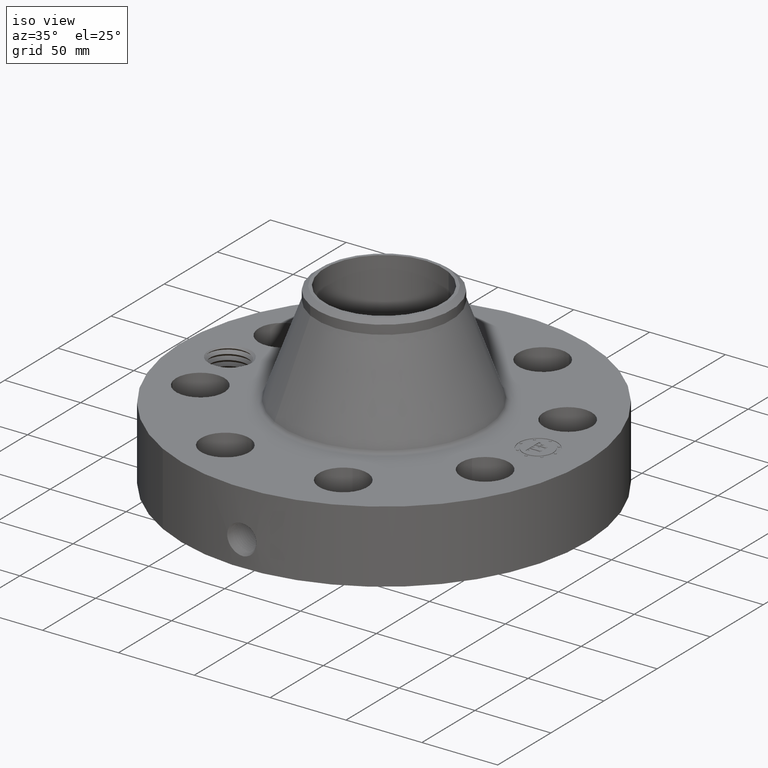
[diagram: clean part render]
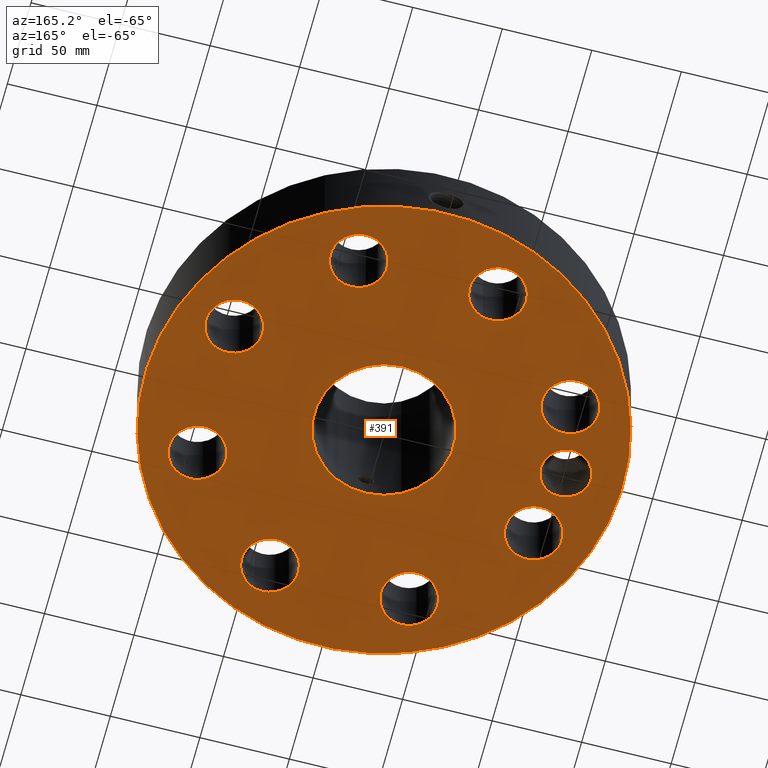
[diagram: tour spotlight — one face highlighted and labeled with its STEP entity id]
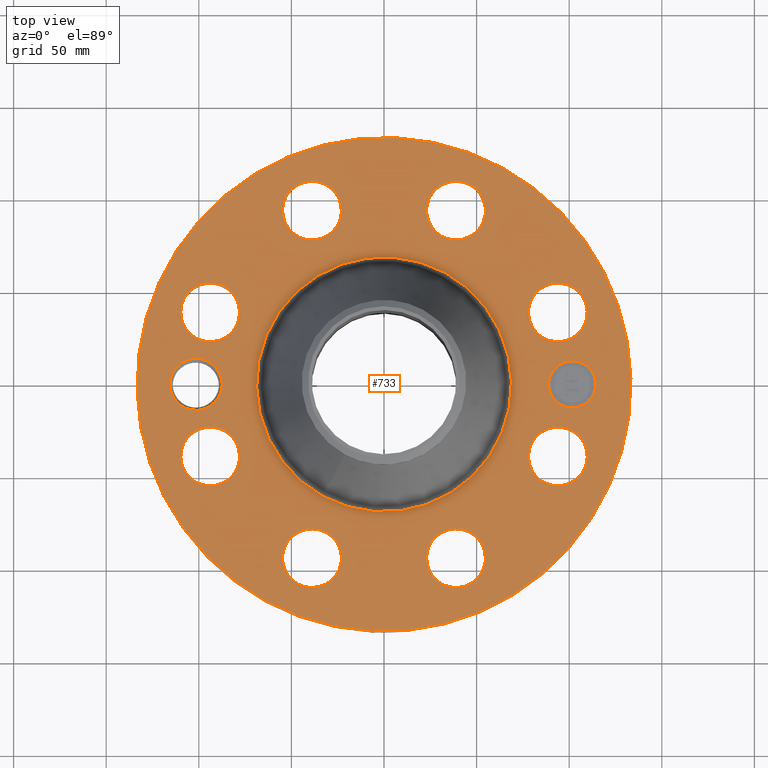
[diagram: tour spotlight — one face highlighted and labeled with its STEP entity id]
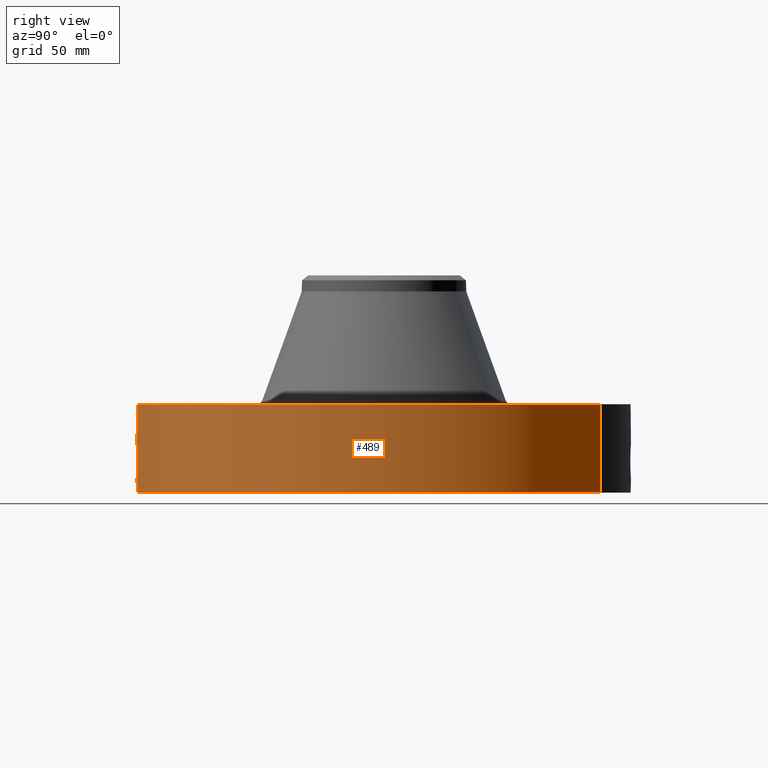
[diagram: tour spotlight — one face highlighted and labeled with its STEP entity id]
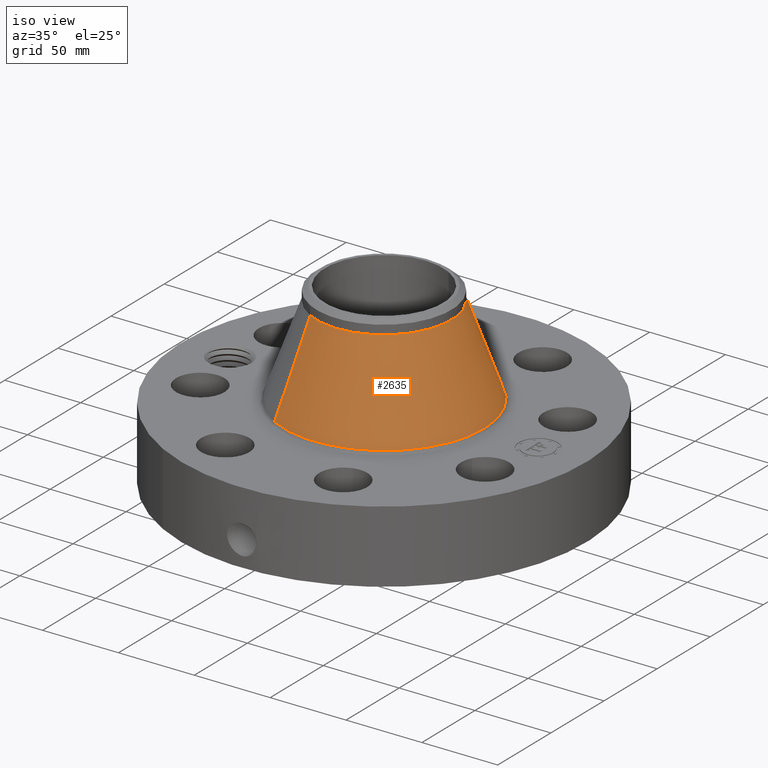
[diagram: tour spotlight — one face highlighted and labeled with its STEP entity id]
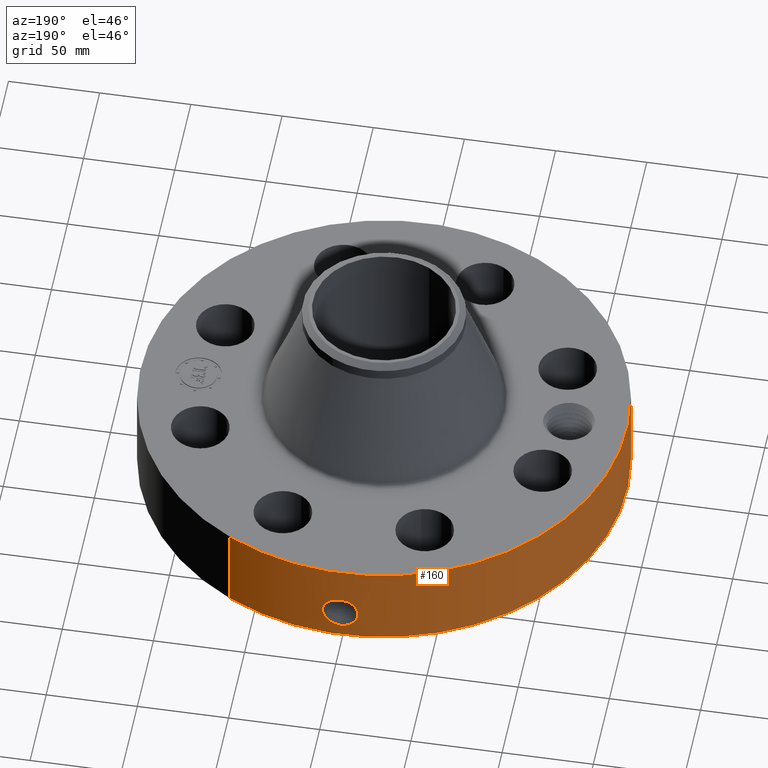
[diagram: tour spotlight — one face highlighted and labeled with its STEP entity id]
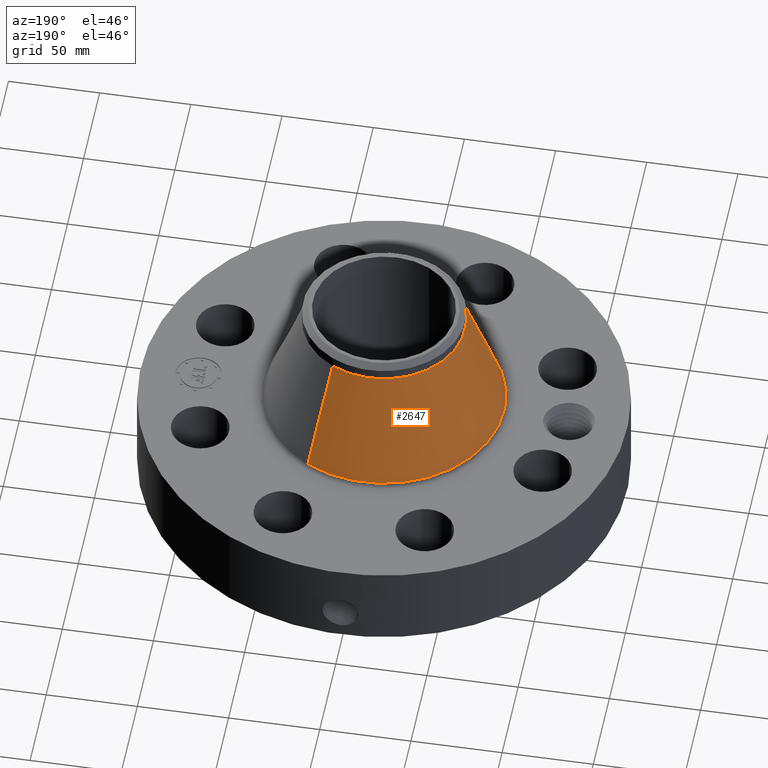
[diagram: tour spotlight — one face highlighted and labeled with its STEP entity id]
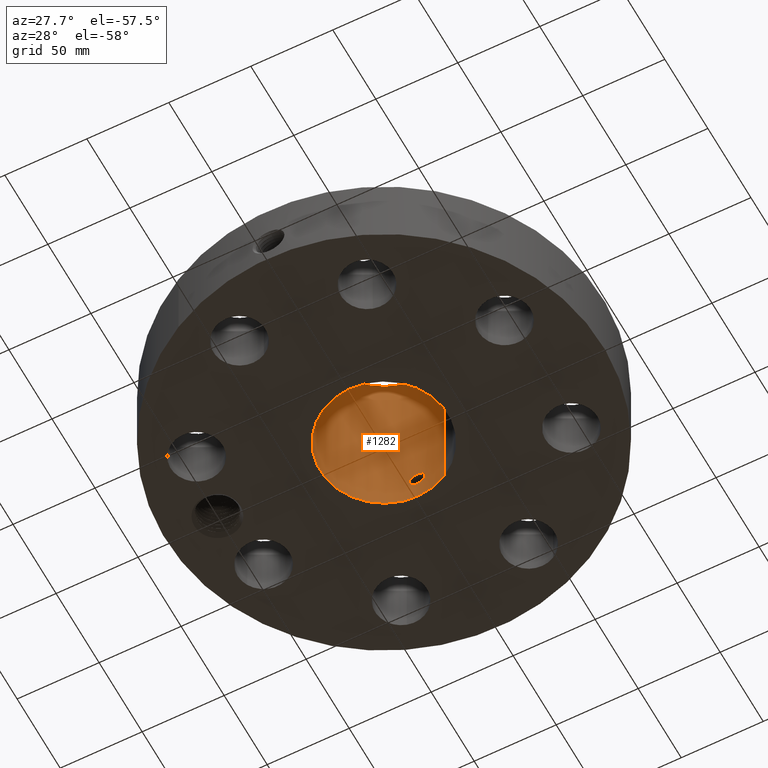
[diagram: tour spotlight — one face highlighted and labeled with its STEP entity id]
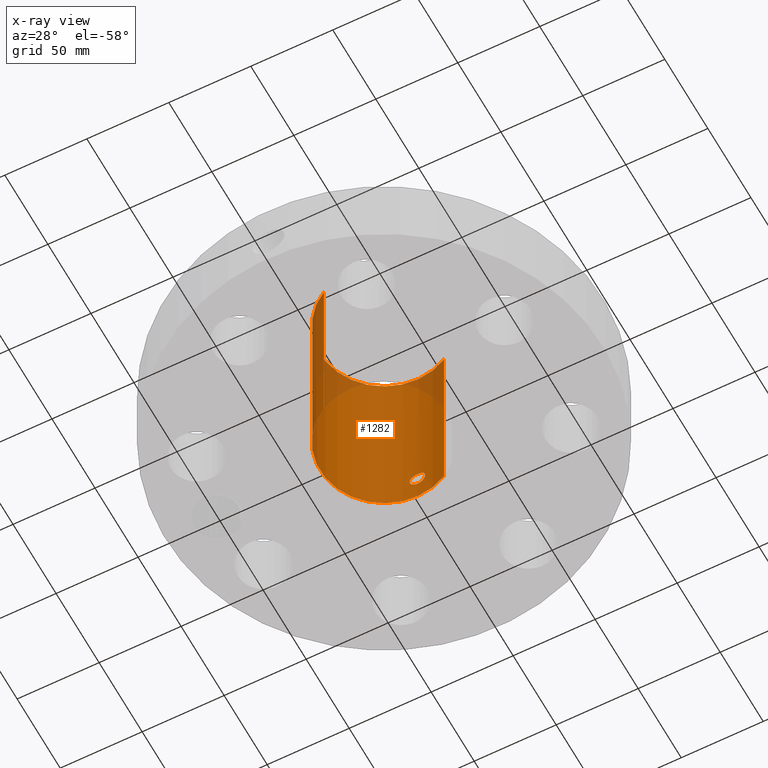
[diagram: x-ray of the same camera — body ghosted, this tour face saturated]
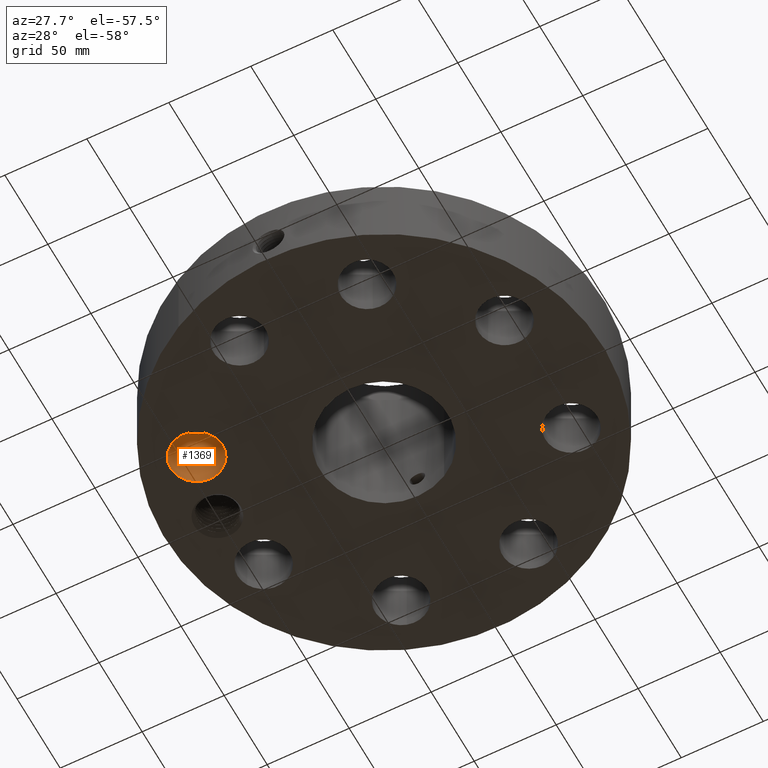
[diagram: tour spotlight — one face highlighted and labeled with its STEP entity id]
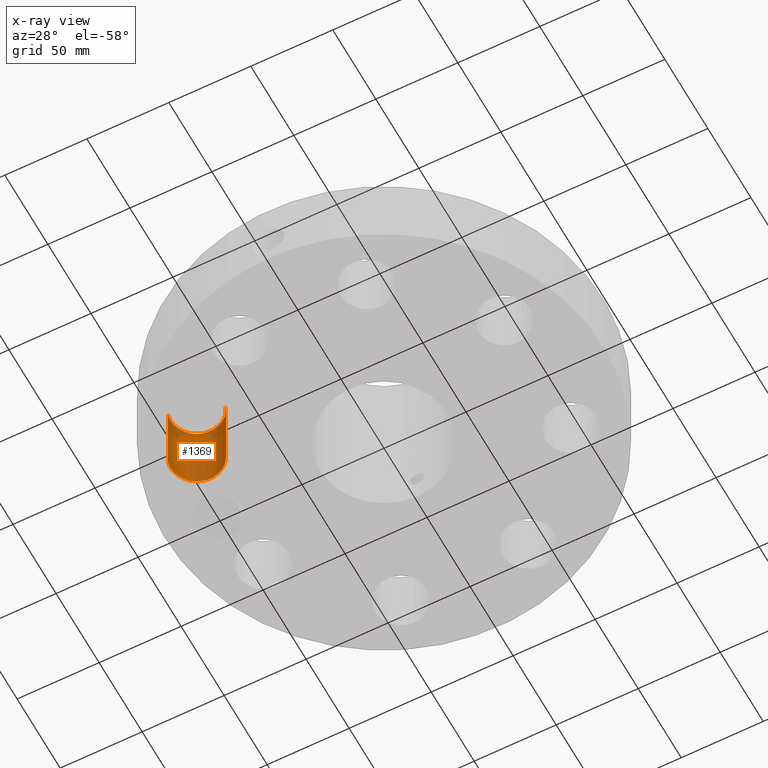
[diagram: x-ray of the same camera — body ghosted, this tour face saturated]
A machine part: a face-by-face anatomy tour. The part has 757 B-rep faces; the first image is the clean iso view, then the 8 largest visible faces are spotlighted one at a time (largest first), each with its STEP entity span.

Face 1 — auxiliary view, entity #391. In plain terms, the highlighted planar face has unit normal (0, 0, -1).
Definition (entity closure, byte-faithful):
#42=AXIS2_PLACEMENT_3D('Circle Axis2P3D',#40,#41,$) ;
#164=AXIS2_PLACEMENT_3D('Plane Axis2P3D',#161,#162,#163) ;
#168=AXIS2_PLACEMENT_3D('Circle Axis2P3D',#166,#167,$) ;
#177=AXIS2_PLACEMENT_3D('Circle Axis2P3D',#175,#176,$) ;
#186=AXIS2_PLACEMENT_3D('Circle Axis2P3D',#184,#185,$) ;
#193=AXIS2_PLACEMENT_3D('Circle Axis2P3D',#191,#192,$) ;
#231=AXIS2_PLACEMENT_3D('Circle Axis2P3D',#229,#230,$) ;
#240=AXIS2_PLACEMENT_3D('Circle Axis2P3D',#238,#239,$) ;
#249=AXIS2_PLACEMENT_3D('Circle Axis2P3D',#247,#248,$) ;
#258=AXIS2_PLACEMENT_3D('Circle Axis2P3D',#256,#257,$) ;
#267=AXIS2_PLACEMENT_3D('Circle Axis2P3D',#265,#266,$) ;
#276=AXIS2_PLACEMENT_3D('Circle Axis2P3D',#274,#275,$) ;
#285=AXIS2_PLACEMENT_3D('Circle Axis2P3D',#283,#284,$) ;
#294=AXIS2_PLACEMENT_3D('Circle Axis2P3D',#292,#293,$) ;
#303=AXIS2_PLACEMENT_3D('Circle Axis2P3D',#301,#302,$) ;
#312=AXIS2_PLACEMENT_3D('Circle Axis2P3D',#310,#311,$) ;
#321=AXIS2_PLACEMENT_3D('Circle Axis2P3D',#319,#320,$) ;
#330=AXIS2_PLACEMENT_3D('Circle Axis2P3D',#328,#329,$) ;
#339=AXIS2_PLACEMENT_3D('Circle Axis2P3D',#337,#338,$) ;
#348=AXIS2_PLACEMENT_3D('Circle Axis2P3D',#346,#347,$) ;
#357=AXIS2_PLACEMENT_3D('Circle Axis2P3D',#355,#356,$) ;
#366=AXIS2_PLACEMENT_3D('Circle Axis2P3D',#364,#365,$) ;
#375=AXIS2_PLACEMENT_3D('Circle Axis2P3D',#373,#374,$) ;
#384=AXIS2_PLACEMENT_3D('Circle Axis2P3D',#382,#383,$) ;
#40=CARTESIAN_POINT('Axis2P3D Location',(0.,0.,0.250000000001)) ;
#44=CARTESIAN_POINT('Vertex',(-2.51698407768,-4.60730844994,0.250000000001)) ;
#46=CARTESIAN_POINT('Vertex',(2.51698407768,4.60730844994,0.250000000001)) ;
#161=CARTESIAN_POINT('Axis2P3D Location',(0.,1.53400000001,0.250000000001)) ;
#166=CARTESIAN_POINT('Axis2P3D Location',(0.,0.,0.250000000001)) ;
#175=CARTESIAN_POINT('Axis2P3D Location',(-4.00000000002,0.,0.250000000001)) ;
#179=CARTESIAN_POINT('Vertex',(-3.51539890934,-0.264738782418,0.250000000001)) ;
#181=CARTESIAN_POINT('Vertex',(-3.52248204844,-0.277311099527,0.250000000001)) ;
#184=CARTESIAN_POINT('Axis2P3D Location',(-4.00000000002,0.,0.250000000001)) ;
#188=CARTESIAN_POINT('Vertex',(-4.48460109069,0.264738782418,0.250000000001)) ;
#191=CARTESIAN_POINT('Axis2P3D Location',(-4.00000000002,0.,0.250000000001)) ;
#195=CARTESIAN_POINT('Vertex',(-3.92517149544,-0.547106511482,0.250000000001)) ;
#199=CARTESIAN_POINT('Control Point',(-3.68690882036,-0.467311797756,0.250000000001)) ;
#200=CARTESIAN_POINT('Control Point',(-3.72839013016,-0.49274146922,0.250000000001)) ;
#201=CARTESIAN_POINT('Control Point',(-3.77253596118,-0.513632346121,0.250000000001)) ;
#202=CARTESIAN_POINT('Control Point',(-3.81870024878,-0.529602298381,0.250000000001)) ;
#203=CARTESIAN_POINT('Control Point',(-3.8683302138,-0.54089694491,0.250000000001)) ;
#204=CARTESIAN_POINT('Control Point',(-3.91853049118,-0.546440817631,0.250000000001)) ;
#205=CARTESIAN_POINT('Control Point',(-3.920743226,-0.54667389626,0.250000000001)) ;
#206=CARTESIAN_POINT('Control Point',(-3.92295691896,-0.546895796458,0.250000000001)) ;
#207=CARTESIAN_POINT('Control Point',(-3.92517149544,-0.547106511482,0.250000000001)) ;
#208=CARTESIAN_POINT('Vertex',(-3.68690882036,-0.467311797759,0.250000000001)) ;
#212=CARTESIAN_POINT('Control Point',(-3.68690882036,-0.467311797759,0.250000000001)) ;
#213=CARTESIAN_POINT('Control Point',(-3.64761506577,-0.438625197695,0.250000000001)) ;
#214=CARTESIAN_POINT('Control Point',(-3.61150316262,-0.405747386375,0.250000000001)) ;
#215=CARTESIAN_POINT('Control Point',(-3.57917314292,-0.369129229898,0.250000000001)) ;
#216=CARTESIAN_POINT('Control Point',(-3.54984801355,-0.327524126235,0.250000000001)) ;
#217=CARTESIAN_POINT('Control Point',(-3.52562474978,-0.283201858542,0.250000000001)) ;
#218=CARTESIAN_POINT('Control Point',(-3.52456719137,-0.281243395057,0.250000000001)) ;
#219=CARTESIAN_POINT('Control Point',(-3.52351961269,-0.27927978652,0.250000000001)) ;
#220=CARTESIAN_POINT('Control Point',(-3.52248204844,-0.277311099527,0.250000000001)) ;
#229=CARTESIAN_POINT('Axis2P3D Location',(3.69551813006,-1.53073372947,0.250000000001)) ;
#233=CARTESIAN_POINT('Vertex',(4.24400723124,-1.8303746911,0.250000000001)) ;
#235=CARTESIAN_POINT('Vertex',(3.14702902888,-1.23109276784,0.250000000001)) ;
#238=CARTESIAN_POINT('Axis2P3D Location',(3.69551813006,-1.53073372947,0.250000000001)) ;
#247=CARTESIAN_POINT('Axis2P3D Location',(0.,0.,0.250000000001)) ;
#251=CARTESIAN_POINT('Vertex',(0.735438776222,1.34621164995,0.250000000001)) ;
#253=CARTESIAN_POINT('Vertex',(-0.735438776222,-1.34621164995,0.250000000001)) ;
#256=CARTESIAN_POINT('Axis2P3D Location',(0.,0.,0.250000000001)) ;
#265=CARTESIAN_POINT('Axis2P3D Location',(1.53073372947,-3.69551813006,0.250000000001)) ;
#269=CARTESIAN_POINT('Vertex',(1.3547715225,-3.09579961132,0.250000000001)) ;
#271=CARTESIAN_POINT('Vertex',(1.70669593643,-4.2952366488,0.250000000001)) ;
#274=CARTESIAN_POINT('Axis2P3D Location',(1.53073372947,-3.69551813006,0.250000000001)) ;
#283=CARTESIAN_POINT('Axis2P3D Location',(-1.53073372947,-3.69551813006,0.250000000001)) ;
#287=CARTESIAN_POINT('Vertex',(-1.23109276784,-3.14702902888,0.250000000001)) ;
#289=CARTESIAN_POINT('Vertex',(-1.8303746911,-4.24400723124,0.250000000001)) ;
#292=CARTESIAN_POINT('Axis2P3D Location',(-1.53073372947,-3.69551813006,0.250000000001)) ;
#301=CARTESIAN_POINT('Axis2P3D Location',(-3.69551813006,-1.53073372947,0.250000000001)) ;
#305=CARTESIAN_POINT('Vertex',(-3.09579961132,-1.3547715225,0.250000000001)) ;
#307=CARTESIAN_POINT('Vertex',(-4.2952366488,-1.70669593643,0.250000000001)) ;
#310=CARTESIAN_POINT('Axis2P3D Location',(-3.69551813006,-1.53073372947,0.250000000001)) ;
#319=CARTESIAN_POINT('Axis2P3D Location',(-3.69551813006,1.53073372947,0.250000000001)) ;
#323=CARTESIAN_POINT('Vertex',(-3.14702902888,1.23109276784,0.250000000001)) ;
#325=CARTESIAN_POINT('Vertex',(-4.24400723124,1.8303746911,0.250000000001)) ;
#328=CARTESIAN_POINT('Axis2P3D Location',(-3.69551813006,1.53073372947,0.250000000001)) ;
#337=CARTESIAN_POINT('Axis2P3D Location',(-1.53073372947,3.69551813006,0.250000000001)) ;
#341=CARTESIAN_POINT('Vertex',(-1.3547715225,3.09579961132,0.250000000001)) ;
#343=CARTESIAN_POINT('Vertex',(-1.70669593643,4.2952366488,0.250000000001)) ;
#346=CARTESIAN_POINT('Axis2P3D Location',(-1.53073372947,3.69551813006,0.250000000001)) ;
#355=CARTESIAN_POINT('Axis2P3D Location',(1.53073372947,3.69551813006,0.250000000001)) ;
#359=CARTESIAN_POINT('Vertex',(1.23109276784,3.14702902888,0.250000000001)) ;
#361=CARTESIAN_POINT('Vertex',(1.8303746911,4.24400723124,0.250000000001)) ;
#364=CARTESIAN_POINT('Axis2P3D Location',(1.53073372947,3.69551813006,0.250000000001)) ;
#373=CARTESIAN_POINT('Axis2P3D Location',(3.69551813006,1.53073372947,0.250000000001)) ;
#377=CARTESIAN_POINT('Vertex',(3.09579961132,1.3547715225,0.250000000001)) ;
#379=CARTESIAN_POINT('Vertex',(4.2952366488,1.70669593643,0.250000000001)) ;
#382=CARTESIAN_POINT('Axis2P3D Location',(3.69551813006,1.53073372947,0.250000000001)) ;
#41=DIRECTION('Axis2P3D Direction',(0.,0.,-0.0393700787402)) ;
#162=DIRECTION('Axis2P3D Direction',(0.,0.,-0.0393700787402)) ;
#163=DIRECTION('Axis2P3D XDirection',(0.0393700787402,0.,0.)) ;
#167=DIRECTION('Axis2P3D Direction',(0.,0.,-0.0393700787402)) ;
#176=DIRECTION('Axis2P3D Direction',(0.,0.,-0.0393700787402)) ;
#185=DIRECTION('Axis2P3D Direction',(0.,0.,-0.0393700787402)) ;
#192=DIRECTION('Axis2P3D Direction',(0.,0.,-0.0393700787402)) ;
#230=DIRECTION('Axis2P3D Direction',(0.,0.,-0.0393700787402)) ;
#239=DIRECTION('Axis2P3D Direction',(0.,0.,-0.0393700787402)) ;
#248=DIRECTION('Axis2P3D Direction',(0.,0.,-0.0393700787402)) ;
#257=DIRECTION('Axis2P3D Direction',(0.,0.,-0.0393700787402)) ;
#266=DIRECTION('Axis2P3D Direction',(0.,0.,-0.0393700787402)) ;
#275=DIRECTION('Axis2P3D Direction',(0.,0.,-0.0393700787402)) ;
#284=DIRECTION('Axis2P3D Direction',(0.,0.,-0.0393700787402)) ;
#293=DIRECTION('Axis2P3D Direction',(0.,0.,-0.0393700787402)) ;
#302=DIRECTION('Axis2P3D Direction',(0.,0.,-0.0393700787402)) ;
#311=DIRECTION('Axis2P3D Direction',(0.,0.,-0.0393700787402)) ;
#320=DIRECTION('Axis2P3D Direction',(0.,0.,-0.0393700787402)) ;
#329=DIRECTION('Axis2P3D Direction',(0.,0.,-0.0393700787402)) ;
#338=DIRECTION('Axis2P3D Direction',(0.,0.,-0.0393700787402)) ;
#347=DIRECTION('Axis2P3D Direction',(0.,0.,-0.0393700787402)) ;
#356=DIRECTION('Axis2P3D Direction',(0.,0.,-0.0393700787402)) ;
#365=DIRECTION('Axis2P3D Direction',(0.,0.,-0.0393700787402)) ;
#374=DIRECTION('Axis2P3D Direction',(0.,0.,-0.0393700787402)) ;
#383=DIRECTION('Axis2P3D Direction',(0.,0.,-0.0393700787402)) ;
#172=ORIENTED_EDGE('',*,*,#48,.T.) ;
#173=ORIENTED_EDGE('',*,*,#170,.T.) ;
#223=ORIENTED_EDGE('',*,*,#183,.F.) ;
#224=ORIENTED_EDGE('',*,*,#190,.F.) ;
#225=ORIENTED_EDGE('',*,*,#197,.F.) ;
#226=ORIENTED_EDGE('',*,*,#210,.F.) ;
#227=ORIENTED_EDGE('',*,*,#221,.T.) ;
#244=ORIENTED_EDGE('',*,*,#237,.F.) ;
#245=ORIENTED_EDGE('',*,*,#242,.F.) ;
#262=ORIENTED_EDGE('',*,*,#255,.F.) ;
#263=ORIENTED_EDGE('',*,*,#260,.F.) ;
#280=ORIENTED_EDGE('',*,*,#273,.F.) ;
#281=ORIENTED_EDGE('',*,*,#278,.F.) ;
#298=ORIENTED_EDGE('',*,*,#291,.F.) ;
#299=ORIENTED_EDGE('',*,*,#296,.F.) ;
#316=ORIENTED_EDGE('',*,*,#309,.F.) ;
#317=ORIENTED_EDGE('',*,*,#314,.F.) ;
#334=ORIENTED_EDGE('',*,*,#327,.F.) ;
#335=ORIENTED_EDGE('',*,*,#332,.F.) ;
#352=ORIENTED_EDGE('',*,*,#345,.F.) ;
#353=ORIENTED_EDGE('',*,*,#350,.F.) ;
#370=ORIENTED_EDGE('',*,*,#363,.F.) ;
#371=ORIENTED_EDGE('',*,*,#368,.F.) ;
#388=ORIENTED_EDGE('',*,*,#381,.F.) ;
#389=ORIENTED_EDGE('',*,*,#386,.F.) ;
#228=FACE_BOUND('',#222,.T.) ;
#246=FACE_BOUND('',#243,.T.) ;
#264=FACE_BOUND('',#261,.T.) ;
#282=FACE_BOUND('',#279,.T.) ;
#300=FACE_BOUND('',#297,.T.) ;
#318=FACE_BOUND('',#315,.T.) ;
#336=FACE_BOUND('',#333,.T.) ;
#354=FACE_BOUND('',#351,.T.) ;
#372=FACE_BOUND('',#369,.T.) ;
#390=FACE_BOUND('',#387,.T.) ;
#391=ADVANCED_FACE('PartBody',(#174,#228,#246,#264,#282,#300,#318,#336,#354,#372,#390),#165,.T.) ;
#198=B_SPLINE_CURVE_WITH_KNOTS('',5,(#199,#200,#201,#202,#203,#204,#205,#206,#207),.UNSPECIFIED.,.F.,.U.,(6,3,6),(0.,8.49987753966,8.89162073282),.UNSPECIFIED.) ;
#211=B_SPLINE_CURVE_WITH_KNOTS('',5,(#212,#213,#214,#215,#216,#217,#218,#219,#220),.UNSPECIFIED.,.F.,.U.,(6,3,6),(0.,8.49907887946,8.89089456627),.UNSPECIFIED.) ;
#43=CIRCLE('generated circle',#42,5.25000000002) ;
#169=CIRCLE('generated circle',#168,5.25000000002) ;
#178=CIRCLE('generated circle',#177,0.552200000002) ;
#187=CIRCLE('generated circle',#186,0.552200000002) ;
#194=CIRCLE('generated circle',#193,0.552200000002) ;
#232=CIRCLE('generated circle',#231,0.625000000002) ;
#241=CIRCLE('generated circle',#240,0.625000000002) ;
#250=CIRCLE('generated circle',#249,1.53400000001) ;
#259=CIRCLE('generated circle',#258,1.53400000001) ;
#268=CIRCLE('generated circle',#267,0.625000000003) ;
#277=CIRCLE('generated circle',#276,0.625000000003) ;
#286=CIRCLE('generated circle',#285,0.625000000002) ;
#295=CIRCLE('generated circle',#294,0.625000000002) ;
#304=CIRCLE('generated circle',#303,0.625000000003) ;
#313=CIRCLE('generated circle',#312,0.625000000003) ;
#322=CIRCLE('generated circle',#321,0.625000000002) ;
#331=CIRCLE('generated circle',#330,0.625000000002) ;
#340=CIRCLE('generated circle',#339,0.625000000003) ;
#349=CIRCLE('generated circle',#348,0.625000000003) ;
#358=CIRCLE('generated circle',#357,0.625000000003) ;
#367=CIRCLE('generated circle',#366,0.625000000003) ;
#376=CIRCLE('generated circle',#375,0.625000000003) ;
#385=CIRCLE('generated circle',#384,0.625000000003) ;
#48=EDGE_CURVE('',#45,#47,#43,.T.) ;
#170=EDGE_CURVE('',#47,#45,#169,.T.) ;
#183=EDGE_CURVE('',#180,#182,#178,.T.) ;
#190=EDGE_CURVE('',#189,#180,#187,.T.) ;
#197=EDGE_CURVE('',#196,#189,#194,.T.) ;
#210=EDGE_CURVE('',#209,#196,#198,.T.) ;
#221=EDGE_CURVE('',#209,#182,#211,.T.) ;
#237=EDGE_CURVE('',#234,#236,#232,.T.) ;
#242=EDGE_CURVE('',#236,#234,#241,.T.) ;
#255=EDGE_CURVE('',#252,#254,#250,.T.) ;
#260=EDGE_CURVE('',#254,#252,#259,.T.) ;
#273=EDGE_CURVE('',#270,#272,#268,.T.) ;
#278=EDGE_CURVE('',#272,#270,#277,.T.) ;
#291=EDGE_CURVE('',#288,#290,#286,.T.) ;
#296=EDGE_CURVE('',#290,#288,#295,.T.) ;
#309=EDGE_CURVE('',#306,#308,#304,.T.) ;
#314=EDGE_CURVE('',#308,#306,#313,.T.) ;
#327=EDGE_CURVE('',#324,#326,#322,.T.) ;
#332=EDGE_CURVE('',#326,#324,#331,.T.) ;
#345=EDGE_CURVE('',#342,#344,#340,.T.) ;
#350=EDGE_CURVE('',#344,#342,#349,.T.) ;
#363=EDGE_CURVE('',#360,#362,#358,.T.) ;
#368=EDGE_CURVE('',#362,#360,#367,.T.) ;
#381=EDGE_CURVE('',#378,#380,#376,.T.) ;
#386=EDGE_CURVE('',#380,#378,#385,.T.) ;
#171=EDGE_LOOP('',(#172,#173)) ;
#222=EDGE_LOOP('',(#223,#224,#225,#226,#227)) ;
#243=EDGE_LOOP('',(#244,#245)) ;
#261=EDGE_LOOP('',(#262,#263)) ;
#279=EDGE_LOOP('',(#280,#281)) ;
#297=EDGE_LOOP('',(#298,#299)) ;
#315=EDGE_LOOP('',(#316,#317)) ;
#333=EDGE_LOOP('',(#334,#335)) ;
#351=EDGE_LOOP('',(#352,#353)) ;
#369=EDGE_LOOP('',(#370,#371)) ;
#387=EDGE_LOOP('',(#388,#389)) ;
#174=FACE_OUTER_BOUND('',#171,.T.) ;
#165=PLANE('',#164) ;
#45=VERTEX_POINT('',#44) ;
#47=VERTEX_POINT('',#46) ;
#180=VERTEX_POINT('',#179) ;
#182=VERTEX_POINT('',#181) ;
#189=VERTEX_POINT('',#188) ;
#196=VERTEX_POINT('',#195) ;
#209=VERTEX_POINT('',#208) ;
#234=VERTEX_POINT('',#233) ;
#236=VERTEX_POINT('',#235) ;
#252=VERTEX_POINT('',#251) ;
#254=VERTEX_POINT('',#253) ;
#270=VERTEX_POINT('',#269) ;
#272=VERTEX_POINT('',#271) ;
#288=VERTEX_POINT('',#287) ;
#290=VERTEX_POINT('',#289) ;
#306=VERTEX_POINT('',#305) ;
#308=VERTEX_POINT('',#307) ;
#324=VERTEX_POINT('',#323) ;
#326=VERTEX_POINT('',#325) ;
#342=VERTEX_POINT('',#341) ;
#344=VERTEX_POINT('',#343) ;
#360=VERTEX_POINT('',#359) ;
#362=VERTEX_POINT('',#361) ;
#378=VERTEX_POINT('',#377) ;
#380=VERTEX_POINT('',#379) ;

Face 2 — top view, entity #733. In plain terms, the highlighted planar face has unit normal (0, 0, -1).
Definition (entity closure, byte-faithful):
#58=AXIS2_PLACEMENT_3D('Circle Axis2P3D',#56,#57,$) ;
#394=AXIS2_PLACEMENT_3D('Circle Axis2P3D',#392,#393,$) ;
#493=AXIS2_PLACEMENT_3D('Plane Axis2P3D',#490,#491,#492) ;
#529=AXIS2_PLACEMENT_3D('Circle Axis2P3D',#527,#528,$) ;
#536=AXIS2_PLACEMENT_3D('Circle Axis2P3D',#534,#535,$) ;
#543=AXIS2_PLACEMENT_3D('Circle Axis2P3D',#541,#542,$) ;
#555=AXIS2_PLACEMENT_3D('Circle Axis2P3D',#553,#554,$) ;
#564=AXIS2_PLACEMENT_3D('Circle Axis2P3D',#562,#563,$) ;
#573=AXIS2_PLACEMENT_3D('Circle Axis2P3D',#571,#572,$) ;
#582=AXIS2_PLACEMENT_3D('Circle Axis2P3D',#580,#581,$) ;
#591=AXIS2_PLACEMENT_3D('Circle Axis2P3D',#589,#590,$) ;
#600=AXIS2_PLACEMENT_3D('Circle Axis2P3D',#598,#599,$) ;
#609=AXIS2_PLACEMENT_3D('Circle Axis2P3D',#607,#608,$) ;
#618=AXIS2_PLACEMENT_3D('Circle Axis2P3D',#616,#617,$) ;
#627=AXIS2_PLACEMENT_3D('Circle Axis2P3D',#625,#626,$) ;
#636=AXIS2_PLACEMENT_3D('Circle Axis2P3D',#634,#635,$) ;
#645=AXIS2_PLACEMENT_3D('Circle Axis2P3D',#643,#644,$) ;
#654=AXIS2_PLACEMENT_3D('Circle Axis2P3D',#652,#653,$) ;
#663=AXIS2_PLACEMENT_3D('Circle Axis2P3D',#661,#662,$) ;
#672=AXIS2_PLACEMENT_3D('Circle Axis2P3D',#670,#671,$) ;
#681=AXIS2_PLACEMENT_3D('Circle Axis2P3D',#679,#680,$) ;
#690=AXIS2_PLACEMENT_3D('Circle Axis2P3D',#688,#689,$) ;
#699=AXIS2_PLACEMENT_3D('Circle Axis2P3D',#697,#698,$) ;
#708=AXIS2_PLACEMENT_3D('Circle Axis2P3D',#706,#707,$) ;
#717=AXIS2_PLACEMENT_3D('Circle Axis2P3D',#715,#716,$) ;
#726=AXIS2_PLACEMENT_3D('Circle Axis2P3D',#724,#725,$) ;
#53=CARTESIAN_POINT('Vertex',(-2.51698407768,-4.60730844994,2.13000000001)) ;
#56=CARTESIAN_POINT('Axis2P3D Location',(0.,0.,2.13000000001)) ;
#60=CARTESIAN_POINT('Vertex',(2.51698407768,4.60730844994,2.13000000001)) ;
#392=CARTESIAN_POINT('Axis2P3D Location',(0.,0.,2.13000000001)) ;
#490=CARTESIAN_POINT('Axis2P3D Location',(0.,5.25000000002,2.13000000001)) ;
#500=CARTESIAN_POINT('Control Point',(-3.43750000001,-2.23792987641E-015,2.13000000001)) ;
#501=CARTESIAN_POINT('Control Point',(-3.43946270701,0.0486163870412,2.13000000001)) ;
#502=CARTESIAN_POINT('Control Point',(-3.446682266,0.09692153017,2.13000000001)) ;
#503=CARTESIAN_POINT('Control Point',(-3.45911615639,0.144151106247,2.13000000001)) ;
#504=CARTESIAN_POINT('Control Point',(-3.47732815203,0.191577628087,2.13000000001)) ;
#505=CARTESIAN_POINT('Control Point',(-3.50059966605,0.236271967519,2.13000000001)) ;
#506=CARTESIAN_POINT('Control Point',(-3.50160425638,0.23817857028,2.13000000001)) ;
#507=CARTESIAN_POINT('Control Point',(-3.50261803774,0.240080055048,2.13000000001)) ;
#508=CARTESIAN_POINT('Control Point',(-3.5036409767,0.241976362434,2.13000000001)) ;
#509=CARTESIAN_POINT('Vertex',(-3.43750000001,-2.23792987641E-015,2.13000000001)) ;
#511=CARTESIAN_POINT('Vertex',(-3.5036409767,0.241976362434,2.13000000001)) ;
#515=CARTESIAN_POINT('Control Point',(-3.43750000001,0.,2.13000000001)) ;
#516=CARTESIAN_POINT('Control Point',(-3.43946331411,-0.048631424218,2.13000000001)) ;
#517=CARTESIAN_POINT('Control Point',(-3.44668673332,-0.096951411643,2.13000000001)) ;
#518=CARTESIAN_POINT('Control Point',(-3.45911919619,-0.144176929604,2.13000000001)) ;
#519=CARTESIAN_POINT('Control Point',(-3.47734825292,-0.191650951173,2.13000000001)) ;
#520=CARTESIAN_POINT('Control Point',(-3.50063529861,-0.236368838842,2.13000000001)) ;
#521=CARTESIAN_POINT('Control Point',(-3.501674237,-0.238339555086,2.13000000001)) ;
#522=CARTESIAN_POINT('Control Point',(-3.50272297989,-0.240304757275,2.13000000001)) ;
#523=CARTESIAN_POINT('Control Point',(-3.50378148959,-0.242264380196,2.13000000001)) ;
#524=CARTESIAN_POINT('Vertex',(-3.50378148959,-0.242264380196,2.13000000001)) ;
#527=CARTESIAN_POINT('Axis2P3D Location',(-4.00000000002,-3.35689481461E-015,2.13000000001)) ;
#531=CARTESIAN_POINT('Vertex',(-3.51539890934,-0.264738782418,2.13000000001)) ;
#534=CARTESIAN_POINT('Axis2P3D Location',(-4.00000000002,-3.35689481461E-015,2.13000000001)) ;
#538=CARTESIAN_POINT('Vertex',(-4.48460109069,0.264738782418,2.13000000001)) ;
#541=CARTESIAN_POINT('Axis2P3D Location',(-4.00000000002,-3.35689481461E-015,2.13000000001)) ;
#553=CARTESIAN_POINT('Axis2P3D Location',(3.69551813006,-1.53073372947,2.13000000001)) ;
#557=CARTESIAN_POINT('Vertex',(3.14702902888,-1.23109276784,2.13000000001)) ;
#559=CARTESIAN_POINT('Vertex',(4.24400723124,-1.8303746911,2.13000000001)) ;
#562=CARTESIAN_POINT('Axis2P3D Location',(3.69551813006,-1.53073372947,2.13000000001)) ;
#571=CARTESIAN_POINT('Axis2P3D Location',(0.,0.,2.13000000001)) ;
#575=CARTESIAN_POINT('Vertex',(-1.29874365031,-2.37733430554,2.13000000001)) ;
#577=CARTESIAN_POINT('Vertex',(1.29874365031,2.37733430554,2.13000000001)) ;
#580=CARTESIAN_POINT('Axis2P3D Location',(0.,0.,2.13000000001)) ;
#589=CARTESIAN_POINT('Axis2P3D Location',(1.53073372947,-3.69551813006,2.13000000001)) ;
#593=CARTESIAN_POINT('Vertex',(1.70669593643,-4.2952366488,2.13000000001)) ;
#595=CARTESIAN_POINT('Vertex',(1.3547715225,-3.09579961132,2.13000000001)) ;
#598=CARTESIAN_POINT('Axis2P3D Location',(1.53073372947,-3.69551813006,2.13000000001)) ;
#607=CARTESIAN_POINT('Axis2P3D Location',(-1.53073372947,-3.69551813006,2.13000000001)) ;
#611=CARTESIAN_POINT('Vertex',(-1.8303746911,-4.24400723124,2.13000000001)) ;
#613=CARTESIAN_POINT('Vertex',(-1.23109276784,-3.14702902888,2.13000000001)) ;
#616=CARTESIAN_POINT('Axis2P3D Location',(-1.53073372947,-3.69551813006,2.13000000001)) ;
#625=CARTESIAN_POINT('Axis2P3D Location',(-3.69551813006,-1.53073372947,2.13000000001)) ;
#629=CARTESIAN_POINT('Vertex',(-4.2952366488,-1.70669593643,2.13000000001)) ;
#631=CARTESIAN_POINT('Vertex',(-3.09579961132,-1.3547715225,2.13000000001)) ;
#634=CARTESIAN_POINT('Axis2P3D Location',(-3.69551813006,-1.53073372947,2.13000000001)) ;
#643=CARTESIAN_POINT('Axis2P3D Location',(-3.69551813006,1.53073372947,2.13000000001)) ;
#647=CARTESIAN_POINT('Vertex',(-4.24400723124,1.8303746911,2.13000000001)) ;
#649=CARTESIAN_POINT('Vertex',(-3.14702902888,1.23109276784,2.13000000001)) ;
#652=CARTESIAN_POINT('Axis2P3D Location',(-3.69551813006,1.53073372947,2.13000000001)) ;
#661=CARTESIAN_POINT('Axis2P3D Location',(-1.53073372947,3.69551813006,2.13000000001)) ;
#665=CARTESIAN_POINT('Vertex',(-1.70669593643,4.2952366488,2.13000000001)) ;
#667=CARTESIAN_POINT('Vertex',(-1.3547715225,3.09579961132,2.13000000001)) ;
#670=CARTESIAN_POINT('Axis2P3D Location',(-1.53073372947,3.69551813006,2.13000000001)) ;
#679=CARTESIAN_POINT('Axis2P3D Location',(1.53073372947,3.69551813006,2.13000000001)) ;
#683=CARTESIAN_POINT('Vertex',(1.8303746911,4.24400723124,2.13000000001)) ;
#685=CARTESIAN_POINT('Vertex',(1.23109276784,3.14702902888,2.13000000001)) ;
#688=CARTESIAN_POINT('Axis2P3D Location',(1.53073372947,3.69551813006,2.13000000001)) ;
#697=CARTESIAN_POINT('Axis2P3D Location',(3.69551813006,1.53073372947,2.13000000001)) ;
#701=CARTESIAN_POINT('Vertex',(4.2952366488,1.70669593643,2.13000000001)) ;
#703=CARTESIAN_POINT('Vertex',(3.09579961132,1.3547715225,2.13000000001)) ;
#706=CARTESIAN_POINT('Axis2P3D Location',(3.69551813006,1.53073372947,2.13000000001)) ;
#715=CARTESIAN_POINT('Axis2P3D Location',(4.00000000002,-1.00706844438E-014,2.13000000001)) ;
#719=CARTESIAN_POINT('Vertex',(4.00000000002,0.499999995002,2.13000000001)) ;
#721=CARTESIAN_POINT('Vertex',(4.00000000002,-0.499999995002,2.13000000001)) ;
#724=CARTESIAN_POINT('Axis2P3D Location',(4.00000000002,-8.95171950564E-015,2.13000000001)) ;
#57=DIRECTION('Axis2P3D Direction',(0.,0.,-0.0393700787402)) ;
#393=DIRECTION('Axis2P3D Direction',(0.,0.,-0.0393700787402)) ;
#491=DIRECTION('Axis2P3D Direction',(0.,0.,-0.0393700787402)) ;
#492=DIRECTION('Axis2P3D XDirection',(0.0393700787402,0.,0.)) ;
#528=DIRECTION('Axis2P3D Direction',(0.,0.,-0.0393700787402)) ;
#535=DIRECTION('Axis2P3D Direction',(0.,0.,-0.0393700787402)) ;
#542=DIRECTION('Axis2P3D Direction',(0.,0.,-0.0393700787402)) ;
#554=DIRECTION('Axis2P3D Direction',(0.,0.,-0.0393700787402)) ;
#563=DIRECTION('Axis2P3D Direction',(0.,0.,-0.0393700787402)) ;
#572=DIRECTION('Axis2P3D Direction',(0.,0.,-0.0393700787402)) ;
#581=DIRECTION('Axis2P3D Direction',(0.,0.,-0.0393700787402)) ;
#590=DIRECTION('Axis2P3D Direction',(0.,0.,-0.0393700787402)) ;
#599=DIRECTION('Axis2P3D Direction',(0.,0.,-0.0393700787402)) ;
#608=DIRECTION('Axis2P3D Direction',(0.,0.,-0.0393700787402)) ;
#617=DIRECTION('Axis2P3D Direction',(0.,0.,-0.0393700787402)) ;
#626=DIRECTION('Axis2P3D Direction',(0.,0.,-0.0393700787402)) ;
#635=DIRECTION('Axis2P3D Direction',(0.,0.,-0.0393700787402)) ;
#644=DIRECTION('Axis2P3D Direction',(0.,0.,-0.0393700787402)) ;
#653=DIRECTION('Axis2P3D Direction',(0.,0.,-0.0393700787402)) ;
#662=DIRECTION('Axis2P3D Direction',(0.,0.,-0.0393700787402)) ;
#671=DIRECTION('Axis2P3D Direction',(0.,0.,-0.0393700787402)) ;
#680=DIRECTION('Axis2P3D Direction',(0.,0.,-0.0393700787402)) ;
#689=DIRECTION('Axis2P3D Direction',(0.,0.,-0.0393700787402)) ;
#698=DIRECTION('Axis2P3D Direction',(0.,0.,-0.0393700787402)) ;
#707=DIRECTION('Axis2P3D Direction',(0.,0.,-0.0393700787402)) ;
#716=DIRECTION('Axis2P3D Direction',(0.,0.,-0.0393700787402)) ;
#725=DIRECTION('Axis2P3D Direction',(0.,0.,-0.0393700787402)) ;
#496=ORIENTED_EDGE('',*,*,#396,.F.) ;
#497=ORIENTED_EDGE('',*,*,#62,.F.) ;
#547=ORIENTED_EDGE('',*,*,#513,.F.) ;
#548=ORIENTED_EDGE('',*,*,#526,.T.) ;
#549=ORIENTED_EDGE('',*,*,#533,.T.) ;
#550=ORIENTED_EDGE('',*,*,#540,.T.) ;
#551=ORIENTED_EDGE('',*,*,#545,.T.) ;
#568=ORIENTED_EDGE('',*,*,#561,.T.) ;
#569=ORIENTED_EDGE('',*,*,#566,.T.) ;
#586=ORIENTED_EDGE('',*,*,#579,.T.) ;
#587=ORIENTED_EDGE('',*,*,#584,.T.) ;
#604=ORIENTED_EDGE('',*,*,#597,.T.) ;
#605=ORIENTED_EDGE('',*,*,#602,.T.) ;
#622=ORIENTED_EDGE('',*,*,#615,.T.) ;
#623=ORIENTED_EDGE('',*,*,#620,.T.) ;
#640=ORIENTED_EDGE('',*,*,#633,.T.) ;
#641=ORIENTED_EDGE('',*,*,#638,.T.) ;
#658=ORIENTED_EDGE('',*,*,#651,.T.) ;
#659=ORIENTED_EDGE('',*,*,#656,.T.) ;
#676=ORIENTED_EDGE('',*,*,#669,.T.) ;
#677=ORIENTED_EDGE('',*,*,#674,.T.) ;
#694=ORIENTED_EDGE('',*,*,#687,.T.) ;
#695=ORIENTED_EDGE('',*,*,#692,.T.) ;
#712=ORIENTED_EDGE('',*,*,#705,.T.) ;
#713=ORIENTED_EDGE('',*,*,#710,.T.) ;
#730=ORIENTED_EDGE('',*,*,#723,.T.) ;
#731=ORIENTED_EDGE('',*,*,#728,.T.) ;
#552=FACE_BOUND('',#546,.T.) ;
#570=FACE_BOUND('',#567,.T.) ;
#588=FACE_BOUND('',#585,.T.) ;
#606=FACE_BOUND('',#603,.T.) ;
#624=FACE_BOUND('',#621,.T.) ;
#642=FACE_BOUND('',#639,.T.) ;
#660=FACE_BOUND('',#657,.T.) ;
#678=FACE_BOUND('',#675,.T.) ;
#696=FACE_BOUND('',#693,.T.) ;
#714=FACE_BOUND('',#711,.T.) ;
#732=FACE_BOUND('',#729,.T.) ;
#733=ADVANCED_FACE('PartBody',(#498,#552,#570,#588,#606,#624,#642,#660,#678,#696,#714,#732),#494,.F.) ;
#499=B_SPLINE_CURVE_WITH_KNOTS('',5,(#500,#501,#502,#503,#504,#505,#506,#507,#508),.UNSPECIFIED.,.F.,.U.,(6,3,6),(0.,8.47636470592,8.85511463578),.UNSPECIFIED.) ;
#514=B_SPLINE_CURVE_WITH_KNOTS('',5,(#515,#516,#517,#518,#519,#520,#521,#522,#523),.UNSPECIFIED.,.F.,.U.,(6,3,6),(0.,8.47898646808,8.87101263483),.UNSPECIFIED.) ;
#59=CIRCLE('generated circle',#58,5.25000000002) ;
#395=CIRCLE('generated circle',#394,5.25000000002) ;
#530=CIRCLE('generated circle',#529,0.552200000002) ;
#537=CIRCLE('generated circle',#536,0.552200000002) ;
#544=CIRCLE('generated circle',#543,0.552200000002) ;
#556=CIRCLE('generated circle',#555,0.625000000002) ;
#565=CIRCLE('generated circle',#564,0.625000000002) ;
#574=CIRCLE('generated circle',#573,2.70895800439) ;
#583=CIRCLE('generated circle',#582,2.70895800439) ;
#592=CIRCLE('generated circle',#591,0.625000000003) ;
#601=CIRCLE('generated circle',#600,0.625000000003) ;
#610=CIRCLE('generated circle',#609,0.625000000002) ;
#619=CIRCLE('generated circle',#618,0.625000000002) ;
#628=CIRCLE('generated circle',#627,0.625000000003) ;
#637=CIRCLE('generated circle',#636,0.625000000003) ;
#646=CIRCLE('generated circle',#645,0.625000000002) ;
#655=CIRCLE('generated circle',#654,0.625000000002) ;
#664=CIRCLE('generated circle',#663,0.625000000003) ;
#673=CIRCLE('generated circle',#672,0.625000000003) ;
#682=CIRCLE('generated circle',#681,0.625000000003) ;
#691=CIRCLE('generated circle',#690,0.625000000003) ;
#700=CIRCLE('generated circle',#699,0.625000000003) ;
#709=CIRCLE('generated circle',#708,0.625000000003) ;
#718=CIRCLE('generated circle',#717,0.499999995002) ;
#727=CIRCLE('generated circle',#726,0.499999995002) ;
#62=EDGE_CURVE('',#54,#61,#59,.T.) ;
#396=EDGE_CURVE('',#61,#54,#395,.T.) ;
#513=EDGE_CURVE('',#510,#512,#499,.T.) ;
#526=EDGE_CURVE('',#510,#525,#514,.T.) ;
#533=EDGE_CURVE('',#525,#532,#530,.T.) ;
#540=EDGE_CURVE('',#532,#539,#537,.T.) ;
#545=EDGE_CURVE('',#539,#512,#544,.T.) ;
#561=EDGE_CURVE('',#558,#560,#556,.T.) ;
#566=EDGE_CURVE('',#560,#558,#565,.T.) ;
#579=EDGE_CURVE('',#576,#578,#574,.T.) ;
#584=EDGE_CURVE('',#578,#576,#583,.T.) ;
#597=EDGE_CURVE('',#594,#596,#592,.T.) ;
#602=EDGE_CURVE('',#596,#594,#601,.T.) ;
#615=EDGE_CURVE('',#612,#614,#610,.T.) ;
#620=EDGE_CURVE('',#614,#612,#619,.T.) ;
#633=EDGE_CURVE('',#630,#632,#628,.T.) ;
#638=EDGE_CURVE('',#632,#630,#637,.T.) ;
#651=EDGE_CURVE('',#648,#650,#646,.T.) ;
#656=EDGE_CURVE('',#650,#648,#655,.T.) ;
#669=EDGE_CURVE('',#666,#668,#664,.T.) ;
#674=EDGE_CURVE('',#668,#666,#673,.T.) ;
#687=EDGE_CURVE('',#684,#686,#682,.T.) ;
#692=EDGE_CURVE('',#686,#684,#691,.T.) ;
#705=EDGE_CURVE('',#702,#704,#700,.T.) ;
#710=EDGE_CURVE('',#704,#702,#709,.T.) ;
#723=EDGE_CURVE('',#720,#722,#718,.T.) ;
#728=EDGE_CURVE('',#722,#720,#727,.T.) ;
#495=EDGE_LOOP('',(#496,#497)) ;
#546=EDGE_LOOP('',(#547,#548,#549,#550,#551)) ;
#567=EDGE_LOOP('',(#568,#569)) ;
#585=EDGE_LOOP('',(#586,#587)) ;
#603=EDGE_LOOP('',(#604,#605)) ;
#621=EDGE_LOOP('',(#622,#623)) ;
#639=EDGE_LOOP('',(#640,#641)) ;
#657=EDGE_LOOP('',(#658,#659)) ;
#675=EDGE_LOOP('',(#676,#677)) ;
#693=EDGE_LOOP('',(#694,#695)) ;
#711=EDGE_LOOP('',(#712,#713)) ;
#729=EDGE_LOOP('',(#730,#731)) ;
#498=FACE_OUTER_BOUND('',#495,.T.) ;
#494=PLANE('',#493) ;
#54=VERTEX_POINT('',#53) ;
#61=VERTEX_POINT('',#60) ;
#510=VERTEX_POINT('',#509) ;
#512=VERTEX_POINT('',#511) ;
#525=VERTEX_POINT('',#524) ;
#532=VERTEX_POINT('',#531) ;
#539=VERTEX_POINT('',#538) ;
#558=VERTEX_POINT('',#557) ;
#560=VERTEX_POINT('',#559) ;
#576=VERTEX_POINT('',#575) ;
#578=VERTEX_POINT('',#577) ;
#594=VERTEX_POINT('',#593) ;
#596=VERTEX_POINT('',#595) ;
#612=VERTEX_POINT('',#611) ;
#614=VERTEX_POINT('',#613) ;
#630=VERTEX_POINT('',#629) ;
#632=VERTEX_POINT('',#631) ;
#648=VERTEX_POINT('',#647) ;
#650=VERTEX_POINT('',#649) ;
#666=VERTEX_POINT('',#665) ;
#668=VERTEX_POINT('',#667) ;
#684=VERTEX_POINT('',#683) ;
#686=VERTEX_POINT('',#685) ;
#702=VERTEX_POINT('',#701) ;
#704=VERTEX_POINT('',#703) ;
#720=VERTEX_POINT('',#719) ;
#722=VERTEX_POINT('',#721) ;

Face 3 — right view, entity #489. In plain terms, the highlighted cylindrical surface (partial cylindrical patch) has radius 133.35 mm, axis along (0, 0, -1).
Definition (entity closure, byte-faithful):
#38=AXIS2_PLACEMENT_3D('Cylinder Axis2P3D',#35,#36,#37) ;
#168=AXIS2_PLACEMENT_3D('Circle Axis2P3D',#166,#167,$) ;
#394=AXIS2_PLACEMENT_3D('Circle Axis2P3D',#392,#393,$) ;
#35=CARTESIAN_POINT('Axis2P3D Location',(0.,0.,2.56000000001)) ;
#44=CARTESIAN_POINT('Vertex',(-2.51698407768,-4.60730844994,0.250000000001)) ;
#46=CARTESIAN_POINT('Vertex',(2.51698407768,4.60730844994,0.250000000001)) ;
#49=CARTESIAN_POINT('Line Origine',(-2.51698407768,-4.60730844994,1.19)) ;
#53=CARTESIAN_POINT('Vertex',(-2.51698407768,-4.60730844994,2.13000000001)) ;
#60=CARTESIAN_POINT('Vertex',(2.51698407768,4.60730844994,2.13000000001)) ;
#63=CARTESIAN_POINT('Line Origine',(2.51698407768,4.60730844994,1.19)) ;
#166=CARTESIAN_POINT('Axis2P3D Location',(0.,0.,0.250000000001)) ;
#392=CARTESIAN_POINT('Axis2P3D Location',(0.,0.,2.13000000001)) ;
#404=CARTESIAN_POINT('Control Point',(0.0642548901631,-5.24960677664,1.28822813092)) ;
#405=CARTESIAN_POINT('Control Point',(0.0433119165128,-5.24986311745,1.29210073241)) ;
#406=CARTESIAN_POINT('Control Point',(0.0220165854915,-5.24999704255,1.29407525178)) ;
#407=CARTESIAN_POINT('Control Point',(0.000716899923116,-5.24999995107,1.29411849726)) ;
#408=CARTESIAN_POINT('Vertex',(0.0642326860734,-5.24960731882,1.28823254207)) ;
#410=CARTESIAN_POINT('Vertex',(0.00071669753756,-5.2499999511,1.29411850753)) ;
#414=CARTESIAN_POINT('Control Point',(0.0642325648551,-5.24960704985,1.28823191245)) ;
#415=CARTESIAN_POINT('Control Point',(0.101366658569,-5.24915268859,1.28265408666)) ;
#416=CARTESIAN_POINT('Control Point',(0.137571209265,-5.24830196282,1.27041645814)) ;
#417=CARTESIAN_POINT('Control Point',(0.17070982714,-5.2472238522,1.25251500554)) ;
#418=CARTESIAN_POINT('Vertex',(0.17070982714,-5.2472238522,1.25251500554)) ;
#422=CARTESIAN_POINT('Control Point',(0.029224179225,-5.24991866104,0.531058913899)) ;
#423=CARTESIAN_POINT('Control Point',(0.07579861461,-5.24965939995,0.537030414226)) ;
#424=CARTESIAN_POINT('Control Point',(0.12121015052,-5.24889011728,0.550520744826)) ;
#425=CARTESIAN_POINT('Control Point',(0.163721802299,-5.24767092096,0.571165603594)) ;
#426=CARTESIAN_POINT('Control Point',(0.257613173387,-5.2441092885,0.636326101977)) ;
#427=CARTESIAN_POINT('Control Point',(0.321981420754,-5.240272862,0.72990456857)) ;
#428=CARTESIAN_POINT('Control Point',(0.347591831252,-5.23849692534,0.79151017397)) ;
#429=CARTESIAN_POINT('Control Point',(0.367018695005,-5.23715940402,0.888798392479)) ;
#430=CARTESIAN_POINT('Control Point',(0.357452253207,-5.23781804436,0.985206805284)) ;
#431=CARTESIAN_POINT('Control Point',(0.350906070926,-5.23826917247,1.01733145379)) ;
#432=CARTESIAN_POINT('Control Point',(0.326667842371,-5.23988640253,1.09444810274)) ;
#433=CARTESIAN_POINT('Control Point',(0.283222018831,-5.24246131212,1.16305221697)) ;
#434=CARTESIAN_POINT('Control Point',(0.250890376015,-5.24419241091,1.19949220045)) ;
#435=CARTESIAN_POINT('Control Point',(0.212821081816,-5.24585383156,1.22976654197)) ;
#436=CARTESIAN_POINT('Control Point',(0.17070982714,-5.2472238522,1.25251500554)) ;
#437=CARTESIAN_POINT('Vertex',(0.029224179225,-5.24991866104,0.531058913899)) ;
#441=CARTESIAN_POINT('Control Point',(0.0292241792249,-5.24991866104,0.531058913899)) ;
#442=CARTESIAN_POINT('Control Point',(0.0194758727198,-5.24997292593,0.53085645789)) ;
#443=CARTESIAN_POINT('Control Point',(0.00972559835262,-5.25000000508,0.530961817463)) ;
#444=CARTESIAN_POINT('Control Point',(-2.72878355219E-006,-5.25000000002,0.531374667805)) ;
#445=CARTESIAN_POINT('Vertex',(-2.72878353824E-006,-5.25000000002,0.531374667805)) ;
#449=CARTESIAN_POINT('Control Point',(-0.194329401017,-5.24640220381,0.584290639301)) ;
#450=CARTESIAN_POINT('Control Point',(-0.134784125887,-5.24860779103,0.552218166309)) ;
#451=CARTESIAN_POINT('Control Point',(-0.0678213827877,-5.24999996477,0.534252755244)) ;
#452=CARTESIAN_POINT('Control Point',(-2.72878354285E-006,-5.25000000002,0.531374667805)) ;
#453=CARTESIAN_POINT('Vertex',(-0.194329401017,-5.24640220381,0.584290639301)) ;
#457=CARTESIAN_POINT('Control Point',(-0.194329401017,-5.24640220381,0.584290639301)) ;
#458=CARTESIAN_POINT('Control Point',(-0.245491765185,-5.24450712387,0.611847881301)) ;
#459=CARTESIAN_POINT('Control Point',(-0.292059527044,-5.24215771215,0.647986187493)) ;
#460=CARTESIAN_POINT('Control Point',(-0.33201343353,-5.23964260673,0.692108479108)) ;
#461=CARTESIAN_POINT('Control Point',(-0.391712510221,-5.23546450048,0.790666546923)) ;
#462=CARTESIAN_POINT('Control Point',(-0.411028571069,-5.23387653244,0.903977180014)) ;
#463=CARTESIAN_POINT('Control Point',(-0.409563636758,-5.23399901225,0.960037257883)) ;
#464=CARTESIAN_POINT('Control Point',(-0.384642365202,-5.23601093393,1.07097346924)) ;
#465=CARTESIAN_POINT('Control Point',(-0.321410488622,-5.24032086589,1.16370403186)) ;
#466=CARTESIAN_POINT('Control Point',(-0.280632350168,-5.24278573324,1.20396112124)) ;
#467=CARTESIAN_POINT('Control Point',(-0.201889890866,-5.24656145134,1.25790111907)) ;
#468=CARTESIAN_POINT('Control Point',(-0.112894673297,-5.24898233293,1.28620972518)) ;
#469=CARTESIAN_POINT('Control Point',(-0.0753579945609,-5.24966520065,1.29335685785)) ;
#470=CARTESIAN_POINT('Control Point',(-0.0374936902309,-5.25000018475,1.29599233588)) ;
#471=CARTESIAN_POINT('Control Point',(2.58579355217E-005,-5.24999999996,1.29415298436)) ;
#472=CARTESIAN_POINT('Vertex',(2.58579355202E-005,-5.24999999996,1.29415298436)) ;
#476=CARTESIAN_POINT('Control Point',(0.000716697526204,-5.2499999511,1.29411850751)) ;
#477=CARTESIAN_POINT('Control Point',(0.000371301062625,-5.24999999825,1.29413604943)) ;
#478=CARTESIAN_POINT('Control Point',(2.58579427932E-005,-5.24999999996,1.29415298436)) ;
#36=DIRECTION('Axis2P3D Direction',(0.,0.,-0.0393700787402)) ;
#37=DIRECTION('Axis2P3D XDirection',(0.0188750212049,0.0345504945626,0.)) ;
#50=DIRECTION('Vector Direction',(0.,0.,-0.0393700787402)) ;
#64=DIRECTION('Vector Direction',(0.,0.,-0.0393700787402)) ;
#167=DIRECTION('Axis2P3D Direction',(0.,0.,-0.0393700787402)) ;
#393=DIRECTION('Axis2P3D Direction',(0.,0.,-0.0393700787402)) ;
#51=VECTOR('Line Direction',#50,0.0393700787402) ;
#65=VECTOR('Line Direction',#64,0.0393700787402) ;
#398=ORIENTED_EDGE('',*,*,#170,.F.) ;
#399=ORIENTED_EDGE('',*,*,#67,.T.) ;
#400=ORIENTED_EDGE('',*,*,#396,.T.) ;
#401=ORIENTED_EDGE('',*,*,#55,.F.) ;
#481=ORIENTED_EDGE('',*,*,#412,.F.) ;
#482=ORIENTED_EDGE('',*,*,#420,.T.) ;
#483=ORIENTED_EDGE('',*,*,#439,.F.) ;
#484=ORIENTED_EDGE('',*,*,#447,.T.) ;
#485=ORIENTED_EDGE('',*,*,#455,.F.) ;
#486=ORIENTED_EDGE('',*,*,#474,.T.) ;
#487=ORIENTED_EDGE('',*,*,#479,.F.) ;
#488=FACE_BOUND('',#480,.T.) ;
#489=ADVANCED_FACE('PartBody',(#402,#488),#39,.T.) ;
#403=B_SPLINE_CURVE_WITH_KNOTS('',3,(#404,#405,#406,#407),.UNSPECIFIED.,.F.,.U.,(4,4),(4.1588657813,6.52187526619),.UNSPECIFIED.) ;
#413=B_SPLINE_CURVE_WITH_KNOTS('',3,(#414,#415,#416,#417),.UNSPECIFIED.,.F.,.U.,(4,4),(0.,4.21917109579),.UNSPECIFIED.) ;
#421=B_SPLINE_CURVE_WITH_KNOTS('',5,(#422,#423,#424,#425,#426,#427,#428,#429,#430,#431,#432,#433,#434,#435,#436),.UNSPECIFIED.,.F.,.U.,(6,3,3,3,6),(0.,8.16106327261,20.0085234357,26.0732239803,35.0091523411),.UNSPECIFIED.) ;
#440=B_SPLINE_CURVE_WITH_KNOTS('',3,(#441,#442,#443,#444),.UNSPECIFIED.,.F.,.U.,(4,4),(0.,1.01672393967),.UNSPECIFIED.) ;
#448=B_SPLINE_CURVE_WITH_KNOTS('',3,(#449,#450,#451,#452),.UNSPECIFIED.,.F.,.U.,(4,4),(0.,7.087842366),.UNSPECIFIED.) ;
#456=B_SPLINE_CURVE_WITH_KNOTS('',5,(#457,#458,#459,#460,#461,#462,#463,#464,#465,#466,#467,#468,#469,#470,#471),.UNSPECIFIED.,.F.,.U.,(6,3,3,3,6),(0.,10.1500013264,19.6791311559,29.7545946779,36.7677751318),.UNSPECIFIED.) ;
#475=B_SPLINE_CURVE_WITH_KNOTS('',2,(#476,#477,#478),.UNSPECIFIED.,.F.,.U.,(3,3),(1.08990104316,1.11572923357),.UNSPECIFIED.) ;
#169=CIRCLE('generated circle',#168,5.25000000002) ;
#395=CIRCLE('generated circle',#394,5.25000000002) ;
#39=CYLINDRICAL_SURFACE('generated cylinder',#38,5.25000000002) ;
#55=EDGE_CURVE('',#45,#54,#52,.F.) ;
#67=EDGE_CURVE('',#47,#61,#66,.F.) ;
#170=EDGE_CURVE('',#47,#45,#169,.T.) ;
#396=EDGE_CURVE('',#61,#54,#395,.T.) ;
#412=EDGE_CURVE('',#409,#411,#403,.T.) ;
#420=EDGE_CURVE('',#409,#419,#413,.T.) ;
#439=EDGE_CURVE('',#438,#419,#421,.T.) ;
#447=EDGE_CURVE('',#438,#446,#440,.T.) ;
#455=EDGE_CURVE('',#454,#446,#448,.T.) ;
#474=EDGE_CURVE('',#454,#473,#456,.T.) ;
#479=EDGE_CURVE('',#411,#473,#475,.T.) ;
#397=EDGE_LOOP('',(#398,#399,#400,#401)) ;
#480=EDGE_LOOP('',(#481,#482,#483,#484,#485,#486,#487)) ;
#402=FACE_OUTER_BOUND('',#397,.T.) ;
#52=LINE('Line',#49,#51) ;
#66=LINE('Line',#63,#65) ;
#45=VERTEX_POINT('',#44) ;
#47=VERTEX_POINT('',#46) ;
#54=VERTEX_POINT('',#53) ;
#61=VERTEX_POINT('',#60) ;
#409=VERTEX_POINT('',#408) ;
#411=VERTEX_POINT('',#410) ;
#419=VERTEX_POINT('',#418) ;
#438=VERTEX_POINT('',#437) ;
#446=VERTEX_POINT('',#445) ;
#454=VERTEX_POINT('',#453) ;
#473=VERTEX_POINT('',#472) ;

Face 4 — iso view, entity #2635. In plain terms, the highlighted conical surface has half-angle 20.043 deg.
Definition (entity closure, byte-faithful):
#1892=AXIS2_PLACEMENT_3D('Circle Axis2P3D',#1890,#1891,$) ;
#2608=AXIS2_PLACEMENT_3D('Cone Axis2P3D',#2605,#2606,#2607) ;
#2619=AXIS2_PLACEMENT_3D('Circle Axis2P3D',#2617,#2618,$) ;
#1887=CARTESIAN_POINT('Vertex',(1.24469687415,2.27840234539,2.20887320527)) ;
#1890=CARTESIAN_POINT('Axis2P3D Location',(0.,0.,2.20887320527)) ;
#1894=CARTESIAN_POINT('Vertex',(-1.24469687415,-2.27840234539,2.20887320527)) ;
#2605=CARTESIAN_POINT('Axis2P3D Location',(0.,0.,4.52845634605)) ;
#2610=CARTESIAN_POINT('Line Origine',(1.04184578336,1.90708591435,3.36866477566)) ;
#2614=CARTESIAN_POINT('Vertex',(0.838994692561,1.53576948331,4.52845634605)) ;
#2617=CARTESIAN_POINT('Axis2P3D Location',(0.,0.,4.52845634605)) ;
#2621=CARTESIAN_POINT('Vertex',(-0.838994692561,-1.53576948331,4.52845634605)) ;
#2624=CARTESIAN_POINT('Line Origine',(-1.04184578336,-1.90708591435,3.36866477566)) ;
#1891=DIRECTION('Axis2P3D Direction',(0.,0.,-0.0393700787402)) ;
#2606=DIRECTION('Axis2P3D Direction',(0.,0.,-0.0393700787402)) ;
#2607=DIRECTION('Axis2P3D XDirection',(-0.0188750212049,-0.0345504945626,0.)) ;
#2611=DIRECTION('Vector Direction',(0.00646890935712,0.0118412591511,-0.0369856849802)) ;
#2618=DIRECTION('Axis2P3D Direction',(0.,0.,-0.0393700787402)) ;
#2625=DIRECTION('Vector Direction',(-0.00646890935712,-0.0118412591511,-0.0369856849802)) ;
#2612=VECTOR('Line Direction',#2611,0.0393700787402) ;
#2626=VECTOR('Line Direction',#2625,0.0393700787402) ;
#2630=ORIENTED_EDGE('',*,*,#1896,.F.) ;
#2631=ORIENTED_EDGE('',*,*,#2616,.T.) ;
#2632=ORIENTED_EDGE('',*,*,#2623,.T.) ;
#2633=ORIENTED_EDGE('',*,*,#2628,.F.) ;
#2635=ADVANCED_FACE('PartBody',(#2634),#2609,.T.) ;
#1893=CIRCLE('generated circle',#1892,2.59622563657) ;
#2620=CIRCLE('generated circle',#2619,1.75000000001) ;
#2609=CONICAL_SURFACE('Cone',#2608,1.75000000001,0.349814224944) ;
#1896=EDGE_CURVE('',#1888,#1895,#1893,.T.) ;
#2616=EDGE_CURVE('',#1888,#2615,#2613,.F.) ;
#2623=EDGE_CURVE('',#2615,#2622,#2620,.T.) ;
#2628=EDGE_CURVE('',#1895,#2622,#2627,.F.) ;
#2629=EDGE_LOOP('',(#2630,#2631,#2632,#2633)) ;
#2634=FACE_OUTER_BOUND('',#2629,.T.) ;
#2613=LINE('Line',#2610,#2612) ;
#2627=LINE('Line',#2624,#2626) ;
#1888=VERTEX_POINT('',#1887) ;
#1895=VERTEX_POINT('',#1894) ;
#2615=VERTEX_POINT('',#2614) ;
#2622=VERTEX_POINT('',#2621) ;

Face 5 — auxiliary view, entity #160. In plain terms, the highlighted cylindrical surface (partial cylindrical patch) has radius 133.35 mm, axis along (0, 0, -1).
Definition (entity closure, byte-faithful):
#38=AXIS2_PLACEMENT_3D('Cylinder Axis2P3D',#35,#36,#37) ;
#42=AXIS2_PLACEMENT_3D('Circle Axis2P3D',#40,#41,$) ;
#58=AXIS2_PLACEMENT_3D('Circle Axis2P3D',#56,#57,$) ;
#35=CARTESIAN_POINT('Axis2P3D Location',(0.,0.,2.56000000001)) ;
#40=CARTESIAN_POINT('Axis2P3D Location',(0.,0.,0.250000000001)) ;
#44=CARTESIAN_POINT('Vertex',(-2.51698407768,-4.60730844994,0.250000000001)) ;
#46=CARTESIAN_POINT('Vertex',(2.51698407768,4.60730844994,0.250000000001)) ;
#49=CARTESIAN_POINT('Line Origine',(-2.51698407768,-4.60730844994,1.19)) ;
#53=CARTESIAN_POINT('Vertex',(-2.51698407768,-4.60730844994,2.13000000001)) ;
#56=CARTESIAN_POINT('Axis2P3D Location',(0.,0.,2.13000000001)) ;
#60=CARTESIAN_POINT('Vertex',(2.51698407768,4.60730844994,2.13000000001)) ;
#63=CARTESIAN_POINT('Line Origine',(2.51698407768,4.60730844994,1.19)) ;
#75=CARTESIAN_POINT('Control Point',(-0.0642548901316,5.24960677664,1.28822813093)) ;
#76=CARTESIAN_POINT('Control Point',(-0.0433119164893,5.24986311745,1.29210073242)) ;
#77=CARTESIAN_POINT('Control Point',(-0.0220165854777,5.24999704255,1.29407525178)) ;
#78=CARTESIAN_POINT('Control Point',(-0.000716899920757,5.24999995107,1.29411849726)) ;
#79=CARTESIAN_POINT('Vertex',(-0.0642326860734,5.24960731882,1.28823254207)) ;
#81=CARTESIAN_POINT('Vertex',(-0.000716697537561,5.2499999511,1.29411850753)) ;
#85=CARTESIAN_POINT('Control Point',(-0.0642325648551,5.24960704985,1.28823191245)) ;
#86=CARTESIAN_POINT('Control Point',(-0.101366658571,5.24915268859,1.28265408666)) ;
#87=CARTESIAN_POINT('Control Point',(-0.137571209263,5.24830196282,1.27041645814)) ;
#88=CARTESIAN_POINT('Control Point',(-0.17070982714,5.2472238522,1.25251500554)) ;
#89=CARTESIAN_POINT('Vertex',(-0.17070982714,5.2472238522,1.25251500554)) ;
#93=CARTESIAN_POINT('Control Point',(-0.029224179225,5.24991866104,0.531058913899)) ;
#94=CARTESIAN_POINT('Control Point',(-0.0757986145892,5.24965939995,0.537030414223)) ;
#95=CARTESIAN_POINT('Control Point',(-0.121210150479,5.24889011729,0.550520744814)) ;
#96=CARTESIAN_POINT('Control Point',(-0.16372180223,5.24767092096,0.571165603557)) ;
#97=CARTESIAN_POINT('Control Point',(-0.257613173302,5.24410928851,0.6363261019)) ;
#98=CARTESIAN_POINT('Control Point',(-0.321981420687,5.24027286201,0.729904568438)) ;
#99=CARTESIAN_POINT('Control Point',(-0.347591831214,5.23849692535,0.791510173862)) ;
#100=CARTESIAN_POINT('Control Point',(-0.367018694994,5.23715940402,0.888798392358)) ;
#101=CARTESIAN_POINT('Control Point',(-0.357452253228,5.23781804436,0.985206805158)) ;
#102=CARTESIAN_POINT('Control Point',(-0.350906070961,5.23826917247,1.01733145365)) ;
#103=CARTESIAN_POINT('Control Point',(-0.326667842426,5.23988640252,1.09444810264)) ;
#104=CARTESIAN_POINT('Control Point',(-0.283222018889,5.24246131211,1.1630522169)) ;
#105=CARTESIAN_POINT('Control Point',(-0.250890376052,5.24419241091,1.19949220042)) ;
#106=CARTESIAN_POINT('Control Point',(-0.212821081837,5.24585383156,1.22976654196)) ;
#107=CARTESIAN_POINT('Control Point',(-0.17070982714,5.2472238522,1.25251500554)) ;
#108=CARTESIAN_POINT('Vertex',(-0.029224179225,5.24991866104,0.531058913899)) ;
#112=CARTESIAN_POINT('Control Point',(-0.029224179225,5.24991866104,0.531058913899)) ;
#113=CARTESIAN_POINT('Control Point',(-0.0194758727198,5.24997292593,0.53085645789)) ;
#114=CARTESIAN_POINT('Control Point',(-0.00972559835264,5.25000000508,0.530961817463)) ;
#115=CARTESIAN_POINT('Control Point',(2.72878353289E-006,5.25000000002,0.531374667805)) ;
#116=CARTESIAN_POINT('Vertex',(2.72878353757E-006,5.25000000002,0.531374667805)) ;
#120=CARTESIAN_POINT('Control Point',(0.194329401017,5.24640220381,0.584290639301)) ;
#121=CARTESIAN_POINT('Control Point',(0.134784125881,5.24860779103,0.552218166306)) ;
#122=CARTESIAN_POINT('Control Point',(0.0678213827939,5.24999996477,0.534252755244)) ;
#123=CARTESIAN_POINT('Control Point',(2.72878354224E-006,5.25000000002,0.531374667805)) ;
#124=CARTESIAN_POINT('Vertex',(0.194329401017,5.24640220381,0.584290639301)) ;
#128=CARTESIAN_POINT('Control Point',(0.194329401017,5.24640220381,0.584290639301)) ;
#129=CARTESIAN_POINT('Control Point',(0.245491765184,5.24450712387,0.6118478813)) ;
#130=CARTESIAN_POINT('Control Point',(0.292059527039,5.24215771215,0.647986187494)) ;
#131=CARTESIAN_POINT('Control Point',(0.332013433494,5.23964260674,0.692108479063)) ;
#132=CARTESIAN_POINT('Control Point',(0.391712510196,5.23546450048,0.79066654686)) ;
#133=CARTESIAN_POINT('Control Point',(0.411028571063,5.23387653244,0.903977179941)) ;
#134=CARTESIAN_POINT('Control Point',(0.409563636762,5.23399901225,0.960037257835)) ;
#135=CARTESIAN_POINT('Control Point',(0.384642365225,5.23601093393,1.07097346918)) ;
#136=CARTESIAN_POINT('Control Point',(0.321410488667,5.24032086589,1.16370403181)) ;
#137=CARTESIAN_POINT('Control Point',(0.280632350201,5.24278573324,1.2039611212)) ;
#138=CARTESIAN_POINT('Control Point',(0.201889890905,5.24656145134,1.25790111906)) ;
#139=CARTESIAN_POINT('Control Point',(0.112894673334,5.24898233293,1.28620972517)) ;
#140=CARTESIAN_POINT('Control Point',(0.0753579945773,5.24966520065,1.29335685785)) ;
#141=CARTESIAN_POINT('Control Point',(0.037493690239,5.25000018475,1.29599233588)) ;
#142=CARTESIAN_POINT('Control Point',(-2.58579355177E-005,5.24999999996,1.29415298436)) ;
#143=CARTESIAN_POINT('Vertex',(-2.58579355209E-005,5.24999999996,1.29415298436)) ;
#147=CARTESIAN_POINT('Control Point',(-0.0007166975262,5.2499999511,1.29411850751)) ;
#148=CARTESIAN_POINT('Control Point',(-0.000371301062621,5.24999999825,1.29413604943)) ;
#149=CARTESIAN_POINT('Control Point',(-2.58579427892E-005,5.24999999996,1.29415298436)) ;
#36=DIRECTION('Axis2P3D Direction',(0.,0.,-0.0393700787402)) ;
#37=DIRECTION('Axis2P3D XDirection',(0.0188750212049,0.0345504945626,0.)) ;
#41=DIRECTION('Axis2P3D Direction',(0.,0.,-0.0393700787402)) ;
#50=DIRECTION('Vector Direction',(0.,0.,-0.0393700787402)) ;
#57=DIRECTION('Axis2P3D Direction',(0.,0.,-0.0393700787402)) ;
#64=DIRECTION('Vector Direction',(0.,0.,-0.0393700787402)) ;
#51=VECTOR('Line Direction',#50,0.0393700787402) ;
#65=VECTOR('Line Direction',#64,0.0393700787402) ;
#69=ORIENTED_EDGE('',*,*,#48,.F.) ;
#70=ORIENTED_EDGE('',*,*,#55,.T.) ;
#71=ORIENTED_EDGE('',*,*,#62,.T.) ;
#72=ORIENTED_EDGE('',*,*,#67,.F.) ;
#152=ORIENTED_EDGE('',*,*,#83,.F.) ;
#153=ORIENTED_EDGE('',*,*,#91,.T.) ;
#154=ORIENTED_EDGE('',*,*,#110,.F.) ;
#155=ORIENTED_EDGE('',*,*,#118,.T.) ;
#156=ORIENTED_EDGE('',*,*,#126,.F.) ;
#157=ORIENTED_EDGE('',*,*,#145,.T.) ;
#158=ORIENTED_EDGE('',*,*,#150,.F.) ;
#159=FACE_BOUND('',#151,.T.) ;
#160=ADVANCED_FACE('PartBody',(#73,#159),#39,.T.) ;
#74=B_SPLINE_CURVE_WITH_KNOTS('',3,(#75,#76,#77,#78),.UNSPECIFIED.,.F.,.U.,(4,4),(4.15886578207,6.52187526566),.UNSPECIFIED.) ;
#84=B_SPLINE_CURVE_WITH_KNOTS('',3,(#85,#86,#87,#88),.UNSPECIFIED.,.F.,.U.,(4,4),(0.,4.219171096),.UNSPECIFIED.) ;
#92=B_SPLINE_CURVE_WITH_KNOTS('',5,(#93,#94,#95,#96,#97,#98,#99,#100,#101,#102,#103,#104,#105,#106,#107),.UNSPECIFIED.,.F.,.U.,(6,3,3,3,6),(0.,8.16106326895,20.0085234295,26.0732239749,35.0091523401),.UNSPECIFIED.) ;
#111=B_SPLINE_CURVE_WITH_KNOTS('',3,(#112,#113,#114,#115),.UNSPECIFIED.,.F.,.U.,(4,4),(0.,1.01672393967),.UNSPECIFIED.) ;
#119=B_SPLINE_CURVE_WITH_KNOTS('',3,(#120,#121,#122,#123),.UNSPECIFIED.,.F.,.U.,(4,4),(0.,7.08784236665),.UNSPECIFIED.) ;
#127=B_SPLINE_CURVE_WITH_KNOTS('',5,(#128,#129,#130,#131,#132,#133,#134,#135,#136,#137,#138,#139,#140,#141,#142),.UNSPECIFIED.,.F.,.U.,(6,3,3,3,6),(0.,10.1500013261,19.6791311546,29.7545946757,36.767775131),.UNSPECIFIED.) ;
#146=B_SPLINE_CURVE_WITH_KNOTS('',2,(#147,#148,#149),.UNSPECIFIED.,.F.,.U.,(3,3),(1.08990104316,1.11572923357),.UNSPECIFIED.) ;
#43=CIRCLE('generated circle',#42,5.25000000002) ;
#59=CIRCLE('generated circle',#58,5.25000000002) ;
#39=CYLINDRICAL_SURFACE('generated cylinder',#38,5.25000000002) ;
#48=EDGE_CURVE('',#45,#47,#43,.T.) ;
#55=EDGE_CURVE('',#45,#54,#52,.F.) ;
#62=EDGE_CURVE('',#54,#61,#59,.T.) ;
#67=EDGE_CURVE('',#47,#61,#66,.F.) ;
#83=EDGE_CURVE('',#80,#82,#74,.T.) ;
#91=EDGE_CURVE('',#80,#90,#84,.T.) ;
#110=EDGE_CURVE('',#109,#90,#92,.T.) ;
#118=EDGE_CURVE('',#109,#117,#111,.T.) ;
#126=EDGE_CURVE('',#125,#117,#119,.T.) ;
#145=EDGE_CURVE('',#125,#144,#127,.T.) ;
#150=EDGE_CURVE('',#82,#144,#146,.T.) ;
#68=EDGE_LOOP('',(#69,#70,#71,#72)) ;
#151=EDGE_LOOP('',(#152,#153,#154,#155,#156,#157,#158)) ;
#73=FACE_OUTER_BOUND('',#68,.T.) ;
#52=LINE('Line',#49,#51) ;
#66=LINE('Line',#63,#65) ;
#45=VERTEX_POINT('',#44) ;
#47=VERTEX_POINT('',#46) ;
#54=VERTEX_POINT('',#53) ;
#61=VERTEX_POINT('',#60) ;
#80=VERTEX_POINT('',#79) ;
#82=VERTEX_POINT('',#81) ;
#90=VERTEX_POINT('',#89) ;
#109=VERTEX_POINT('',#108) ;
#117=VERTEX_POINT('',#116) ;
#125=VERTEX_POINT('',#124) ;
#144=VERTEX_POINT('',#143) ;

Face 6 — auxiliary view, entity #2647. In plain terms, the highlighted conical surface has half-angle 20.043 deg.
Definition (entity closure, byte-faithful):
#1911=AXIS2_PLACEMENT_3D('Circle Axis2P3D',#1909,#1910,$) ;
#2608=AXIS2_PLACEMENT_3D('Cone Axis2P3D',#2605,#2606,#2607) ;
#2638=AXIS2_PLACEMENT_3D('Circle Axis2P3D',#2636,#2637,$) ;
#1887=CARTESIAN_POINT('Vertex',(1.24469687415,2.27840234539,2.20887320527)) ;
#1894=CARTESIAN_POINT('Vertex',(-1.24469687415,-2.27840234539,2.20887320527)) ;
#1909=CARTESIAN_POINT('Axis2P3D Location',(0.,0.,2.20887320527)) ;
#2605=CARTESIAN_POINT('Axis2P3D Location',(0.,0.,4.52845634605)) ;
#2610=CARTESIAN_POINT('Line Origine',(1.04184578336,1.90708591435,3.36866477566)) ;
#2614=CARTESIAN_POINT('Vertex',(0.838994692561,1.53576948331,4.52845634605)) ;
#2621=CARTESIAN_POINT('Vertex',(-0.838994692561,-1.53576948331,4.52845634605)) ;
#2624=CARTESIAN_POINT('Line Origine',(-1.04184578336,-1.90708591435,3.36866477566)) ;
#2636=CARTESIAN_POINT('Axis2P3D Location',(0.,0.,4.52845634605)) ;
#1910=DIRECTION('Axis2P3D Direction',(0.,0.,-0.0393700787402)) ;
#2606=DIRECTION('Axis2P3D Direction',(0.,0.,-0.0393700787402)) ;
#2607=DIRECTION('Axis2P3D XDirection',(-0.0188750212049,-0.0345504945626,0.)) ;
#2611=DIRECTION('Vector Direction',(0.00646890935712,0.0118412591511,-0.0369856849802)) ;
#2625=DIRECTION('Vector Direction',(-0.00646890935712,-0.0118412591511,-0.0369856849802)) ;
#2637=DIRECTION('Axis2P3D Direction',(0.,0.,-0.0393700787402)) ;
#2612=VECTOR('Line Direction',#2611,0.0393700787402) ;
#2626=VECTOR('Line Direction',#2625,0.0393700787402) ;
#2642=ORIENTED_EDGE('',*,*,#1913,.F.) ;
#2643=ORIENTED_EDGE('',*,*,#2628,.T.) ;
#2644=ORIENTED_EDGE('',*,*,#2640,.T.) ;
#2645=ORIENTED_EDGE('',*,*,#2616,.F.) ;
#2647=ADVANCED_FACE('PartBody',(#2646),#2609,.T.) ;
#1912=CIRCLE('generated circle',#1911,2.59622563657) ;
#2639=CIRCLE('generated circle',#2638,1.75000000001) ;
#2609=CONICAL_SURFACE('Cone',#2608,1.75000000001,0.349814224944) ;
#1913=EDGE_CURVE('',#1895,#1888,#1912,.T.) ;
#2616=EDGE_CURVE('',#1888,#2615,#2613,.F.) ;
#2628=EDGE_CURVE('',#1895,#2622,#2627,.F.) ;
#2640=EDGE_CURVE('',#2622,#2615,#2639,.T.) ;
#2641=EDGE_LOOP('',(#2642,#2643,#2644,#2645)) ;
#2646=FACE_OUTER_BOUND('',#2641,.T.) ;
#2613=LINE('Line',#2610,#2612) ;
#2627=LINE('Line',#2624,#2626) ;
#1888=VERTEX_POINT('',#1887) ;
#1895=VERTEX_POINT('',#1894) ;
#2615=VERTEX_POINT('',#2614) ;
#2622=VERTEX_POINT('',#2621) ;

Face 7 — auxiliary view, entity #1282. An x-ray twin of the same camera follows (body ghosted, this face saturated) — the face is partly hidden behind the body. In plain terms, the highlighted cylindrical surface (partial cylindrical patch) has radius 38.9636 mm, axis along (0, 0, -1).
Definition (entity closure, byte-faithful):
#258=AXIS2_PLACEMENT_3D('Circle Axis2P3D',#256,#257,$) ;
#1159=AXIS2_PLACEMENT_3D('Cylinder Axis2P3D',#1156,#1157,#1158) ;
#1231=AXIS2_PLACEMENT_3D('Circle Axis2P3D',#1229,#1230,$) ;
#251=CARTESIAN_POINT('Vertex',(0.735438776222,1.34621164995,0.250000000001)) ;
#253=CARTESIAN_POINT('Vertex',(-0.735438776222,-1.34621164995,0.250000000001)) ;
#256=CARTESIAN_POINT('Axis2P3D Location',(0.,0.,0.250000000001)) ;
#1156=CARTESIAN_POINT('Axis2P3D Location',(0.,0.,2.56000000001)) ;
#1165=CARTESIAN_POINT('Vertex',(0.735438776222,1.34621164995,4.87000000002)) ;
#1167=CARTESIAN_POINT('Vertex',(-0.735438776222,-1.34621164995,4.87000000002)) ;
#1170=CARTESIAN_POINT('Line Origine',(0.735438776222,1.34621164995,2.56000000001)) ;
#1175=CARTESIAN_POINT('Line Origine',(-0.735438776222,-1.34621164995,2.56000000001)) ;
#1229=CARTESIAN_POINT('Axis2P3D Location',(0.,0.,4.87000000002)) ;
#1241=CARTESIAN_POINT('Control Point',(0.164546730355,1.52514929549,1.02989228849)) ;
#1242=CARTESIAN_POINT('Control Point',(0.153730987743,1.52631619443,1.04969037255)) ;
#1243=CARTESIAN_POINT('Control Point',(0.139943198901,1.52770675216,1.06785160913)) ;
#1244=CARTESIAN_POINT('Control Point',(0.123507748953,1.52917958204,1.08379188798)) ;
#1245=CARTESIAN_POINT('Control Point',(0.0771300553238,1.53257507292,1.11681265248)) ;
#1246=CARTESIAN_POINT('Control Point',(0.0211174569591,1.53443807468,1.13100247168)) ;
#1247=CARTESIAN_POINT('Control Point',(-0.0139156713133,1.53452842349,1.13166348665)) ;
#1248=CARTESIAN_POINT('Control Point',(-0.07044921468,1.53291709887,1.11958376251)) ;
#1249=CARTESIAN_POINT('Control Point',(-0.118051609551,1.52962023944,1.08830865568)) ;
#1250=CARTESIAN_POINT('Control Point',(-0.135083668786,1.52815406454,1.07297980438)) ;
#1251=CARTESIAN_POINT('Control Point',(-0.174443725808,1.52429835588,1.0249543532)) ;
#1252=CARTESIAN_POINT('Control Point',(-0.192228358509,1.52190251018,0.963988821451)) ;
#1253=CARTESIAN_POINT('Control Point',(-0.192989830596,1.52179279367,0.923172568865)) ;
#1254=CARTESIAN_POINT('Control Point',(-0.183177815634,1.52313920758,0.884211684361)) ;
#1255=CARTESIAN_POINT('Control Point',(-0.164546730355,1.52514929549,0.850107711515)) ;
#1256=CARTESIAN_POINT('Vertex',(0.164546730355,1.52514929549,1.02989228849)) ;
#1258=CARTESIAN_POINT('Vertex',(-0.164546730355,1.52514929549,0.850107711515)) ;
#1262=CARTESIAN_POINT('Control Point',(-0.164546730355,1.52514929549,0.850107711515)) ;
#1263=CARTESIAN_POINT('Control Point',(-0.153730987742,1.52631619443,0.830309627461)) ;
#1264=CARTESIAN_POINT('Control Point',(-0.139943198901,1.52770675216,0.812148390876)) ;
#1265=CARTESIAN_POINT('Control Point',(-0.123507748955,1.52917958204,0.796208112031)) ;
#1266=CARTESIAN_POINT('Control Point',(-0.0771300553223,1.53257507292,0.763187347526)) ;
#1267=CARTESIAN_POINT('Control Point',(-0.0211174569539,1.53443807468,0.74899752833)) ;
#1268=CARTESIAN_POINT('Control Point',(0.0139156713061,1.53452842349,0.74833651336)) ;
#1269=CARTESIAN_POINT('Control Point',(0.0704492146775,1.53291709887,0.760416237493)) ;
#1270=CARTESIAN_POINT('Control Point',(0.118051609551,1.52962023944,0.791691344328)) ;
#1271=CARTESIAN_POINT('Control Point',(0.135083668784,1.52815406454,0.807020195623)) ;
#1272=CARTESIAN_POINT('Control Point',(0.174443725811,1.52429835588,0.855045646812)) ;
#1273=CARTESIAN_POINT('Control Point',(0.192228358513,1.52190251018,0.916011178568)) ;
#1274=CARTESIAN_POINT('Control Point',(0.192989830599,1.52179279367,0.956827431129)) ;
#1275=CARTESIAN_POINT('Control Point',(0.183177815638,1.52313920758,0.995788315641)) ;
#1276=CARTESIAN_POINT('Control Point',(0.164546730355,1.52514929549,1.02989228849)) ;
#257=DIRECTION('Axis2P3D Direction',(0.,0.,-0.0393700787402)) ;
#1157=DIRECTION('Axis2P3D Direction',(0.,0.,-0.0393700787402)) ;
#1158=DIRECTION('Axis2P3D XDirection',(-0.0188750212049,-0.0345504945626,0.)) ;
#1171=DIRECTION('Vector Direction',(0.,0.,-0.0393700787402)) ;
#1176=DIRECTION('Vector Direction',(0.,0.,-0.0393700787402)) ;
#1230=DIRECTION('Axis2P3D Direction',(0.,0.,-0.0393700787402)) ;
#1172=VECTOR('Line Direction',#1171,0.0393700787402) ;
#1177=VECTOR('Line Direction',#1176,0.0393700787402) ;
#1235=ORIENTED_EDGE('',*,*,#1233,.F.) ;
#1236=ORIENTED_EDGE('',*,*,#1179,.T.) ;
#1237=ORIENTED_EDGE('',*,*,#260,.T.) ;
#1238=ORIENTED_EDGE('',*,*,#1174,.F.) ;
#1279=ORIENTED_EDGE('',*,*,#1260,.F.) ;
#1280=ORIENTED_EDGE('',*,*,#1277,.F.) ;
#1281=FACE_BOUND('',#1278,.T.) ;
#1282=ADVANCED_FACE('PartBody',(#1239,#1281),#1160,.F.) ;
#1240=B_SPLINE_CURVE_WITH_KNOTS('',5,(#1241,#1242,#1243,#1244,#1245,#1246,#1247,#1248,#1249,#1250,#1251,#1252,#1253,#1254,#1255),.UNSPECIFIED.,.F.,.U.,(6,3,3,3,6),(0.,4.05727165974,10.1291862367,14.1895477936,21.178561586),.UNSPECIFIED.) ;
#1261=B_SPLINE_CURVE_WITH_KNOTS('',5,(#1262,#1263,#1264,#1265,#1266,#1267,#1268,#1269,#1270,#1271,#1272,#1273,#1274,#1275,#1276),.UNSPECIFIED.,.F.,.U.,(6,3,3,3,6),(0.,4.0572716598,10.1291862373,14.1895477944,21.178561588),.UNSPECIFIED.) ;
#259=CIRCLE('generated circle',#258,1.53400000001) ;
#1232=CIRCLE('generated circle',#1231,1.53400000001) ;
#1160=CYLINDRICAL_SURFACE('generated cylinder',#1159,1.53400000001) ;
#260=EDGE_CURVE('',#254,#252,#259,.T.) ;
#1174=EDGE_CURVE('',#1166,#252,#1173,.T.) ;
#1179=EDGE_CURVE('',#1168,#254,#1178,.T.) ;
#1233=EDGE_CURVE('',#1168,#1166,#1232,.T.) ;
#1260=EDGE_CURVE('',#1257,#1259,#1240,.T.) ;
#1277=EDGE_CURVE('',#1259,#1257,#1261,.T.) ;
#1234=EDGE_LOOP('',(#1235,#1236,#1237,#1238)) ;
#1278=EDGE_LOOP('',(#1279,#1280)) ;
#1239=FACE_OUTER_BOUND('',#1234,.T.) ;
#1173=LINE('Line',#1170,#1172) ;
#1178=LINE('Line',#1175,#1177) ;
#252=VERTEX_POINT('',#251) ;
#254=VERTEX_POINT('',#253) ;
#1166=VERTEX_POINT('',#1165) ;
#1168=VERTEX_POINT('',#1167) ;
#1257=VERTEX_POINT('',#1256) ;
#1259=VERTEX_POINT('',#1258) ;

Face 8 — auxiliary view, entity #1369. An x-ray twin of the same camera follows (body ghosted, this face saturated) — the face is partly hidden behind the body. In plain terms, the highlighted cylindrical surface (edge-blend (fillet) strip) has radius 15.875 mm, axis along (-0, 0, -1).
Definition (entity closure, byte-faithful):
#312=AXIS2_PLACEMENT_3D('Circle Axis2P3D',#310,#311,$) ;
#627=AXIS2_PLACEMENT_3D('Circle Axis2P3D',#625,#626,$) ;
#1344=AXIS2_PLACEMENT_3D('Cylinder Axis2P3D',#1341,#1342,#1343) ;
#305=CARTESIAN_POINT('Vertex',(-3.09579961132,-1.3547715225,0.250000000001)) ;
#307=CARTESIAN_POINT('Vertex',(-4.2952366488,-1.70669593643,0.250000000001)) ;
#310=CARTESIAN_POINT('Axis2P3D Location',(-3.69551813006,-1.53073372947,0.250000000001)) ;
#625=CARTESIAN_POINT('Axis2P3D Location',(-3.69551813006,-1.53073372947,2.13000000001)) ;
#629=CARTESIAN_POINT('Vertex',(-4.2952366488,-1.70669593643,2.13000000001)) ;
#631=CARTESIAN_POINT('Vertex',(-3.09579961132,-1.3547715225,2.13000000001)) ;
#1341=CARTESIAN_POINT('Axis2P3D Location',(-3.69551813006,-1.53073372947,2.12606299213)) ;
#1346=CARTESIAN_POINT('Line Origine',(-3.09579961132,-1.3547715225,1.19)) ;
#1351=CARTESIAN_POINT('Line Origine',(-4.2952366488,-1.70669593643,1.19)) ;
#311=DIRECTION('Axis2P3D Direction',(0.,0.,-0.0393700787402)) ;
#626=DIRECTION('Axis2P3D Direction',(0.,0.,-0.0393700787402)) ;
#1342=DIRECTION('Axis2P3D Direction',(-0.,0.,-0.0393700787402)) ;
#1343=DIRECTION('Axis2P3D XDirection',(-0.0377775444876,-0.0110842335096,0.)) ;
#1347=DIRECTION('Vector Direction',(0.,0.,-0.0393700787402)) ;
#1352=DIRECTION('Vector Direction',(0.,0.,-0.0393700787402)) ;
#1348=VECTOR('Line Direction',#1347,0.0393700787402) ;
#1353=VECTOR('Line Direction',#1352,0.0393700787402) ;
#1364=ORIENTED_EDGE('',*,*,#1355,.F.) ;
#1365=ORIENTED_EDGE('',*,*,#314,.T.) ;
#1366=ORIENTED_EDGE('',*,*,#1350,.T.) ;
#1367=ORIENTED_EDGE('',*,*,#633,.F.) ;
#1369=ADVANCED_FACE('PartBody',(#1368),#1345,.F.) ;
#313=CIRCLE('generated circle',#312,0.625000000003) ;
#628=CIRCLE('generated circle',#627,0.625000000003) ;
#1345=CYLINDRICAL_SURFACE('generated cylinder',#1344,0.625000000003) ;
#314=EDGE_CURVE('',#308,#306,#313,.T.) ;
#633=EDGE_CURVE('',#630,#632,#628,.T.) ;
#1350=EDGE_CURVE('',#306,#632,#1349,.F.) ;
#1355=EDGE_CURVE('',#308,#630,#1354,.F.) ;
#1363=EDGE_LOOP('',(#1364,#1365,#1366,#1367)) ;
#1368=FACE_OUTER_BOUND('',#1363,.T.) ;
#1349=LINE('Line',#1346,#1348) ;
#1354=LINE('Line',#1351,#1353) ;
#306=VERTEX_POINT('',#305) ;
#308=VERTEX_POINT('',#307) ;
#630=VERTEX_POINT('',#629) ;
#632=VERTEX_POINT('',#631) ;